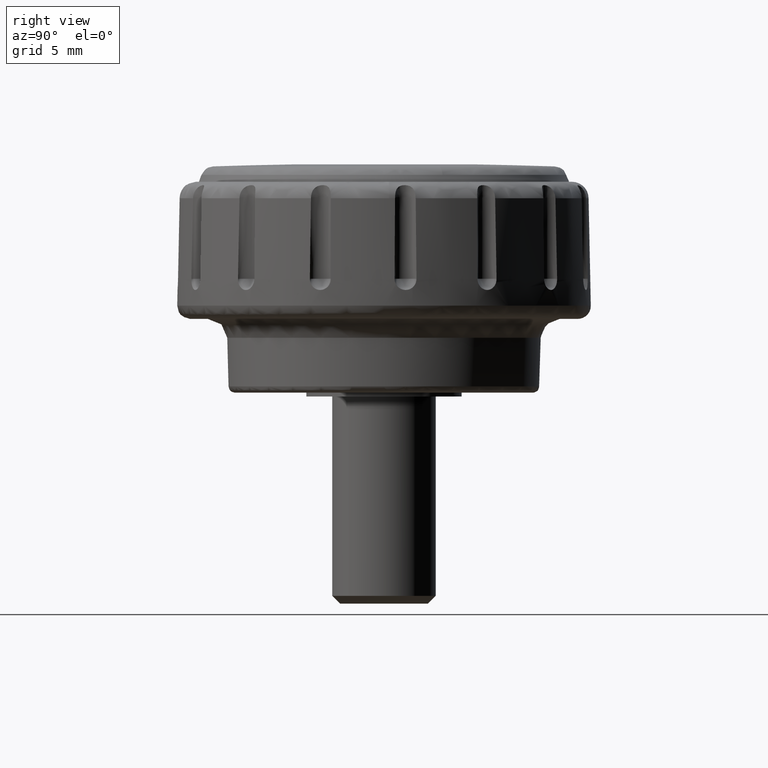
[diagram: clean part render]
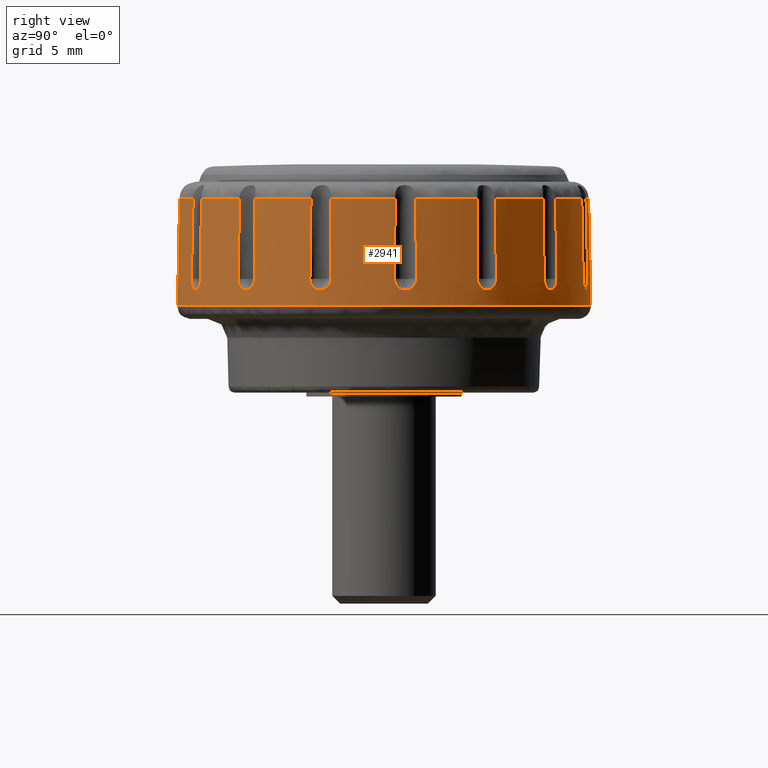
[diagram: same view with one face highlighted and labeled with its STEP entity id]
A machine part, right view. The second image highlights one B-rep face of the part: STEP entity #2941.
In plain terms, the highlighted face is a freeform B-spline surface patch.
Its self-contained STEP definition (entity closure, byte-faithful):
#1978=CARTESIAN_POINT('',(-14.927693594955068,5.198423367449368,15.533965141502227));
#1979=CARTESIAN_POINT('',(-10.298540728856555,18.491410626244370,15.533965141502231));
#1980=CARTESIAN_POINT('',(3.440039797647609,15.428083735924780,15.533965141502231));
#1981=CARTESIAN_POINT('',(18.868123533572390,11.988043938277174,15.533965141502238));
#1982=CARTESIAN_POINT('',(15.428083735924780,-3.440039797647609,15.533965141502231));
#1983=CARTESIAN_POINT('',(11.988043938277174,-18.868123533572390,15.533965141502238));
#1984=CARTESIAN_POINT('',(-3.440039797647609,-15.428083735924780,15.533965141502231));
#1985=CARTESIAN_POINT('',(-15.094565898296848,5.256535015813127,6.807405097432788));
#1986=CARTESIAN_POINT('',(-10.413665091609030,18.698120675831870,6.807405097432788));
#1987=CARTESIAN_POINT('',(3.478494992414926,15.600549753718290,6.807405097432788));
#1988=CARTESIAN_POINT('',(19.079044746133217,12.122054761303366,6.807405097432790));
#1989=CARTESIAN_POINT('',(15.600549753718290,-3.478494992414926,6.807405097432788));
#1990=CARTESIAN_POINT('',(12.122054761303366,-19.079044746133217,6.807405097432790));
#1991=CARTESIAN_POINT('',(-3.478494992414926,-15.600549753718290,6.807405097432788));
#1999=(BOUNDED_SURFACE()B_SPLINE_SURFACE(2,1,((#1978,#1985),(#1979,#1986),(#1980,#1987),(#1981,#1988),(#1982,#1989),(#1983,#1990),(#1984,#1991)),.UNSPECIFIED.,.F.,.F.,.U.)B_SPLINE_SURFACE_WITH_KNOTS((3,2,2,3),(2,2),(0.0,24.363972756865952,50.846551840415913,77.329130923965849),(0.0,8.728348843398013),.UNSPECIFIED.)GEOMETRIC_REPRESENTATION_ITEM()RATIONAL_B_SPLINE_SURFACE(((0.956886118190660,0.956886118190660),(0.730538238691624,0.730538238691624),(1.0,1.0),(0.707106781186548,0.707106781186548),(1.0,1.0),(0.707106781186548,0.707106781186548),(1.0,1.0)))REPRESENTATION_ITEM('')SURFACE());
#2000=CARTESIAN_POINT('',(-15.090495837670669,5.255117644719157,7.020248457151402));
#2001=VERTEX_POINT('',#2000);
#2002=CARTESIAN_POINT('',(0.311967356578948,15.976295025269760,7.020248025336921));
#2003=VERTEX_POINT('',#2002);
#2004=CARTESIAN_POINT('',(-15.090495837670669,5.255117644719157,7.020248457151402));
#2005=CARTESIAN_POINT('',(-14.772796356107129,6.167717485666166,7.020248448636456));
#2006=CARTESIAN_POINT('',(-14.111887728855841,7.624469030706870,7.020248430672686));
#2007=CARTESIAN_POINT('',(-13.001472589233650,9.336516996821787,7.020248400073816));
#2008=CARTESIAN_POINT('',(-11.856832311906929,10.764028787795320,7.020248368341139));
#2009=CARTESIAN_POINT('',(-10.668098928693651,11.945056868345590,7.020248335214681));
#2010=CARTESIAN_POINT('',(-9.209701806422318,13.093154495233120,7.020248294403361));
#2011=CARTESIAN_POINT('',(-7.639868188474646,14.086069439701451,7.020248250335789));
#2012=CARTESIAN_POINT('',(-6.000774453261035,14.845769060514160,7.020248204167408));
#2013=CARTESIAN_POINT('',(-4.191881620644669,15.452649387509810,7.020248153084097));
#2014=CARTESIAN_POINT('',(-2.197368646626697,15.889953810532150,7.020248096628525));
#2015=CARTESIAN_POINT('',(-0.575825835407164,15.993691656326620,7.020248050586776));
#2016=CARTESIAN_POINT('',(0.311967356578948,15.976295025269760,7.020248025336921));
#2017=B_SPLINE_CURVE_WITH_KNOTS('',3,(#2004,#2005,#2006,#2007,#2008,#2009,#2010,#2011,#2012,#2013,#2014,#2015,#2016),.UNSPECIFIED.,.F.,.U.,(4,1,1,1,1,1,1,1,1,1,4),(9.470718E-009,2.898937506332750,4.779330738673217,6.111276245479834,8.383419629077334,9.793721519733657,11.674101489221369,13.946244181845451,15.199839542260641,17.393632873564929,20.057520203524479),.UNSPECIFIED.);
#2018=EDGE_CURVE('',#2001,#2003,#2017,.T.);
#2019=ORIENTED_EDGE('',*,*,#2018,.F.);
#2020=CARTESIAN_POINT('',(-14.931664381964570,5.199806156370299,15.326313459857060));
#2021=VERTEX_POINT('',#2020);
#2022=CARTESIAN_POINT('',(-14.931664381964570,5.199806156370299,15.326313459857060));
#2023=CARTESIAN_POINT('',(-15.090495837670669,5.255117644719157,7.020248457151402));
#2024=QUASI_UNIFORM_CURVE('',1,(#2022,#2023),.UNSPECIFIED.,.F.,.U.);
#2025=EDGE_CURVE('',#2021,#2001,#2024,.T.);
#2026=ORIENTED_EDGE('',*,*,#2025,.F.);
#2027=CARTESIAN_POINT('',(-14.076055403437399,7.201197784416010,15.326313504426750));
#2028=VERTEX_POINT('',#2027);
#2029=CARTESIAN_POINT('',(-14.931664381964570,5.199806156370299,15.326313459857060));
#2030=CARTESIAN_POINT('',(-14.692891188378811,5.885536954796350,15.326313474619450));
#2031=CARTESIAN_POINT('',(-14.406776452359679,6.554775240638855,15.326313489523040));
#2032=CARTESIAN_POINT('',(-14.076055403437399,7.201197784416010,15.326313504426750));
#2033=B_SPLINE_CURVE_WITH_KNOTS('',3,(#2029,#2030,#2031,#2032),.UNSPECIFIED.,.F.,.U.,(4,4),(1.163967E-010,2.178335010239122),.UNSPECIFIED.);
#2034=EDGE_CURVE('',#2021,#2028,#2033,.T.);
#2035=ORIENTED_EDGE('',*,*,#2034,.T.);
#2036=CARTESIAN_POINT('',(-14.208974832873000,7.218052992821060,9.099991000000141));
#2037=VERTEX_POINT('',#2036);
#2038=CARTESIAN_POINT('',(-14.208974832873000,7.218052992821060,9.099991000000141));
#2039=CARTESIAN_POINT('',(-14.076055403437399,7.201197784416010,15.326313504426750));
#2040=QUASI_UNIFORM_CURVE('',1,(#2038,#2039),.UNSPECIFIED.,.F.,.U.);
#2041=EDGE_CURVE('',#2037,#2028,#2040,.T.);
#2042=ORIENTED_EDGE('',*,*,#2041,.F.);
#2043=CARTESIAN_POINT('',(-13.355504674081820,8.696306670591250,9.099991000000120));
#2044=VERTEX_POINT('',#2043);
#2045=CARTESIAN_POINT('',(-13.355504674081830,8.696306670591259,9.099991000000120));
#2046=CARTESIAN_POINT('',(-13.356295651383840,8.697200841092998,9.043159749671190));
#2047=CARTESIAN_POINT('',(-13.360107633359320,8.693432712874117,8.987076210219732));
#2048=CARTESIAN_POINT('',(-13.370133555254361,8.681072753468648,8.904462474515070));
#2049=CARTESIAN_POINT('',(-13.374198809378109,8.675826637296179,8.877153455126566));
#2050=CARTESIAN_POINT('',(-13.383798228536760,8.663028766872094,8.823002736645165));
#2051=CARTESIAN_POINT('',(-13.389366169842051,8.655428991191858,8.796043551609659));
#2052=CARTESIAN_POINT('',(-13.407951376072120,8.629568977792319,8.717514149114017));
#2053=CARTESIAN_POINT('',(-13.422881040632261,8.608220510851636,8.667842284737782));
#2054=CARTESIAN_POINT('',(-13.457645549288779,8.557318814833135,8.573800086129587));
#2055=CARTESIAN_POINT('',(-13.477698834929759,8.527426612144843,8.529150192411333));
#2056=CARTESIAN_POINT('',(-13.521043815156469,8.461590058999004,8.449013395721240));
#2057=CARTESIAN_POINT('',(-13.544459785879440,8.425473709347642,8.413047112514256));
#2058=CARTESIAN_POINT('',(-13.582147209052181,8.366326897673469,8.365384907340996));
#2059=CARTESIAN_POINT('',(-13.595180210019610,8.345710830080730,8.350529052961184));
#2060=CARTESIAN_POINT('',(-13.621523639128430,8.303691975167073,8.323607437447009));
#2061=CARTESIAN_POINT('',(-13.648274828306130,8.260683872951228,8.299291841923390));
#2062=CARTESIAN_POINT('',(-13.675799158432939,8.215713043644794,8.280100364119646));
#2063=CARTESIAN_POINT('',(-13.703702871040401,8.169741419211002,8.263502487488722));
#2064=CARTESIAN_POINT('',(-13.717903866110589,8.146155534592568,8.256477760920362));
#2065=CARTESIAN_POINT('',(-13.760674371406941,8.074515000557076,8.239615946243534));
#2066=CARTESIAN_POINT('',(-13.788971344599060,8.026323030278331,8.234071077902827));
#2067=CARTESIAN_POINT('',(-13.831079632508709,7.953394769859538,8.234034061611959));
#2068=CARTESIAN_POINT('',(-13.845059596971851,7.928978121006923,8.235411993848091));
#2069=CARTESIAN_POINT('',(-13.872905900595740,7.879925234119413,8.241029299347533));
#2070=CARTESIAN_POINT('',(-13.886714744744690,7.855387771995630,8.245274670844328));
#2071=CARTESIAN_POINT('',(-13.927069566729029,7.783069499322808,8.262008697703276));
#2072=CARTESIAN_POINT('',(-13.952842823501181,7.736059261788916,8.278505818858189));
#2073=CARTESIAN_POINT('',(-13.989868421571760,7.667386327443958,8.311281245802379));
#2074=CARTESIAN_POINT('',(-14.001998801593640,7.644685791931251,8.323635523174570));
#2075=CARTESIAN_POINT('',(-14.025268268880140,7.600763328037430,8.350627796961119));
#2076=CARTESIAN_POINT('',(-14.036434939134750,7.579492675904786,8.365270344347904));
#2077=CARTESIAN_POINT('',(-14.068591624466920,7.517713631435577,8.412550763818663));
#2078=CARTESIAN_POINT('',(-14.088255880407710,7.479206801677559,8.448520691629630));
#2079=CARTESIAN_POINT('',(-14.124026067308529,7.407900606166807,8.529621584036004));
#2080=CARTESIAN_POINT('',(-14.139550224221161,7.376265287452833,8.573424368690930));
#2081=CARTESIAN_POINT('',(-14.159561460463630,7.334632358738228,8.643795505250825));
#2082=CARTESIAN_POINT('',(-14.165681630999540,7.321731884156942,8.668036234749453));
#2083=CARTESIAN_POINT('',(-14.176814878006560,7.297936198939899,8.718119164301063));
#2084=CARTESIAN_POINT('',(-14.181829368028961,7.287035322123693,8.744019708183753));
#2085=CARTESIAN_POINT('',(-14.194900846258790,7.258074794974844,8.822455327845134));
#2086=CARTESIAN_POINT('',(-14.201137398161910,7.243444979324280,8.876242978843120));
#2087=CARTESIAN_POINT('',(-14.206871108992241,7.228485612756764,8.959151757000436));
#2088=CARTESIAN_POINT('',(-14.208176389572181,7.224661613694884,8.987280716264753));
#2089=CARTESIAN_POINT('',(-14.209516577766401,7.219500909861065,9.043760738803380));
#2090=CARTESIAN_POINT('',(-14.209552739321060,7.218170524690478,9.071916648190646));
#2091=CARTESIAN_POINT('',(-14.208974832873009,7.218052992821061,9.099991000000141));
#2092=B_SPLINE_CURVE_WITH_KNOTS('',3,(#2045,#2046,#2047,#2048,#2049,#2050,#2051,#2052,#2053,#2054,#2055,#2056,#2057,#2058,#2059,#2060,#2061,#2062,#2063,#2064,#2065,#2066,#2067,#2068,#2069,#2070,#2071,#2072,#2073,#2074,#2075,#2076,#2077,#2078,#2079,#2080,#2081,#2082,#2083,#2084,#2085,#2086,#2087,#2088,#2089,#2090,#2091),.UNSPECIFIED.,.F.,.U.,(4,2,2,2,2,2,2,2,1,2,2,2,2,2,2,2,2,2,2,2,2,2,2,4),(0.0,0.062499999999999,0.093749999999999,0.124999999999999,0.187499999999999,0.249999999999998,0.312499999999998,0.343749999999998,0.374999999999999,0.406249999999999,0.437499999999999,0.499999999999999,0.531250000000000,0.562500000000000,0.625000000000002,0.656250000000003,0.687500000000004,0.750000000000004,0.812500000000004,0.843750000000004,0.875000000000004,0.937500000000003,0.968750000000002,1.0),.UNSPECIFIED.);
#2093=EDGE_CURVE('',#2044,#2037,#2092,.T.);
#2094=ORIENTED_EDGE('',*,*,#2093,.F.);
#2095=CARTESIAN_POINT('',(-13.274447920699160,8.589622672246000,15.326313504426750));
#2096=VERTEX_POINT('',#2095);
#2097=CARTESIAN_POINT('',(-13.274447920699160,8.589622672246000,15.326313504426750));
#2098=CARTESIAN_POINT('',(-13.355504674081820,8.696306670591250,9.099991000000120));
#2099=QUASI_UNIFORM_CURVE('',1,(#2097,#2098),.UNSPECIFIED.,.F.,.U.);
#2100=EDGE_CURVE('',#2096,#2044,#2099,.T.);
#2101=ORIENTED_EDGE('',*,*,#2100,.F.);
#2102=CARTESIAN_POINT('',(-9.930125462377559,12.303869048082300,15.326313504426750));
#2103=VERTEX_POINT('',#2102);
#2104=CARTESIAN_POINT('',(-13.274447920699160,8.589622672246000,15.326313504426750));
#2105=CARTESIAN_POINT('',(-12.891025061125450,9.182199729223362,15.326313504426750));
#2106=CARTESIAN_POINT('',(-11.887930098806320,10.525844374306780,15.326313504426770));
#2107=CARTESIAN_POINT('',(-10.682859058365329,11.696488970569151,15.326313504426720));
#2108=CARTESIAN_POINT('',(-9.930125462377559,12.303869048082300,15.326313504426750));
#2109=B_SPLINE_CURVE_WITH_KNOTS('',3,(#2104,#2105,#2106,#2107,#2108),.UNSPECIFIED.,.F.,.U.,(4,1,4),(5.996288E-010,2.117418032911687,5.019063199674124),.UNSPECIFIED.);
#2110=EDGE_CURVE('',#2096,#2103,#2109,.T.);
#2111=ORIENTED_EDGE('',*,*,#2110,.T.);
#2112=CARTESIAN_POINT('',(-10.044697772485900,12.373330249686539,9.099991000000141));
#2113=VERTEX_POINT('',#2112);
#2114=CARTESIAN_POINT('',(-10.044697772485900,12.373330249686539,9.099991000000141));
#2115=CARTESIAN_POINT('',(-9.930125462377559,12.303869048082300,15.326313504426750));
#2116=QUASI_UNIFORM_CURVE('',1,(#2114,#2115),.UNSPECIFIED.,.F.,.U.);
#2117=EDGE_CURVE('',#2113,#2103,#2116,.T.);
#2118=ORIENTED_EDGE('',*,*,#2117,.F.);
#2119=CARTESIAN_POINT('',(-8.663754047178010,13.376644594904880,9.099991000000120));
#2120=VERTEX_POINT('',#2119);
#2121=CARTESIAN_POINT('',(-8.663754047178006,13.376644594904890,9.099991000000120));
#2122=CARTESIAN_POINT('',(-8.664112948991145,13.377783179757690,9.043159749671188));
#2123=CARTESIAN_POINT('',(-8.669128003631885,13.375891296091680,8.987076210219732));
#2124=CARTESIAN_POINT('',(-8.683314387434917,13.368677821135501,8.904462474515073));
#2125=CARTESIAN_POINT('',(-8.689161969555007,13.365538743351420,8.877153455126566));
#2126=CARTESIAN_POINT('',(-8.703136838178210,13.357751742482060,8.823002736645167));
#2127=CARTESIAN_POINT('',(-8.711314512914381,13.353073687685640,8.796043551609664));
#2128=CARTESIAN_POINT('',(-8.738811158685241,13.337008674302799,8.717514149114017));
#2129=CARTESIAN_POINT('',(-8.761133289706553,13.323578320946950,8.667842284737782));
#2130=CARTESIAN_POINT('',(-8.813595833642321,13.291217307312071,8.573800086129589));
#2131=CARTESIAN_POINT('',(-8.844073675826026,13.272065827411501,8.529150192411331));
#2132=CARTESIAN_POINT('',(-8.910449424241959,13.229551135089871,8.449013395721238));
#2133=CARTESIAN_POINT('',(-8.946530820749574,13.206081341245460,8.413047112514251));
#2134=CARTESIAN_POINT('',(-9.005017170628278,13.167376896093939,8.365384907340998));
#2135=CARTESIAN_POINT('',(-9.025308719587622,13.153844180252840,8.350529052961178));
#2136=CARTESIAN_POINT('',(-9.066465247582173,13.126172884133940,8.323607437447006));
#2137=CARTESIAN_POINT('',(-9.108396646062337,13.097763716597260,8.299291841923388));
#2138=CARTESIAN_POINT('',(-9.151832656972776,13.067875973396630,8.280100364119649));
#2139=CARTESIAN_POINT('',(-9.196022311075636,13.037228267110009,8.263502487488726));
#2140=CARTESIAN_POINT('',(-9.218588809149679,13.021457554415530,8.256477760920360));
#2141=CARTESIAN_POINT('',(-9.286800440305990,12.973407001711211,8.239615946243532));
#2142=CARTESIAN_POINT('',(-9.332252451845072,12.940890862053591,8.234071077902826));
#2143=CARTESIAN_POINT('',(-9.400382882822139,12.891394564684260,8.234034061611956));
#2144=CARTESIAN_POINT('',(-9.423085361644926,12.874775009850159,8.235411993848086));
#2145=CARTESIAN_POINT('',(-9.468475832378468,12.841289079907870,8.241029299347527));
#2146=CARTESIAN_POINT('',(-9.491071124199864,12.824489555756511,8.245274670844326));
#2147=CARTESIAN_POINT('',(-9.557351579977610,12.774837311077521,8.262008697703273));
#2148=CARTESIAN_POINT('',(-9.600017407835193,12.742374250056370,8.278505818858186));
#2149=CARTESIAN_POINT('',(-9.661773773554709,12.694698070289640,8.311281245802375));
#2150=CARTESIAN_POINT('',(-9.682088566733640,12.678893969235290,8.323635523174563));
#2151=CARTESIAN_POINT('',(-9.721211158394775,12.648233346866890,8.350627796961113));
#2152=CARTESIAN_POINT('',(-9.740063972927324,12.633343533203711,8.365270344347898));
#2153=CARTESIAN_POINT('',(-9.794568367905216,12.589984869995821,8.412550763818654));
#2154=CARTESIAN_POINT('',(-9.828194698269115,12.562805304032111,8.448520691629629));
#2155=CARTESIAN_POINT('',(-9.889875232623933,12.512212898763710,8.529621584036002));
#2156=CARTESIAN_POINT('',(-9.916924498991550,12.489626840520710,8.573424368690922));
#2157=CARTESIAN_POINT('',(-9.952139310629470,12.459732570658190,8.643795505250820));
#2158=CARTESIAN_POINT('',(-9.962977460347817,12.450436698321839,8.668036234749447));
#2159=CARTESIAN_POINT('',(-9.982826764704752,12.433226557694480,8.718119164301058));
#2160=CARTESIAN_POINT('',(-9.991841515329929,12.425307688033170,8.744019708183751));
#2161=CARTESIAN_POINT('',(-10.015562212485690,12.404167579180649,8.822455327845132));
#2162=CARTESIAN_POINT('',(-10.027210068254680,12.393339211732370,8.876242978843116));
#2163=CARTESIAN_POINT('',(-10.038532596279371,12.382005260650899,8.959151757000434));
#2164=CARTESIAN_POINT('',(-10.041280389965671,12.379042769119240,8.987280716264753));
#2165=CARTESIAN_POINT('',(-10.044603760156170,12.374873335220830,9.043760738803378));
#2166=CARTESIAN_POINT('',(-10.045177911778451,12.373672676120670,9.071916648190646));
#2167=CARTESIAN_POINT('',(-10.044697772485909,12.373330249686550,9.099991000000141));
#2168=B_SPLINE_CURVE_WITH_KNOTS('',3,(#2121,#2122,#2123,#2124,#2125,#2126,#2127,#2128,#2129,#2130,#2131,#2132,#2133,#2134,#2135,#2136,#2137,#2138,#2139,#2140,#2141,#2142,#2143,#2144,#2145,#2146,#2147,#2148,#2149,#2150,#2151,#2152,#2153,#2154,#2155,#2156,#2157,#2158,#2159,#2160,#2161,#2162,#2163,#2164,#2165,#2166,#2167),.UNSPECIFIED.,.F.,.U.,(4,2,2,2,2,2,2,2,1,2,2,2,2,2,2,2,2,2,2,2,2,2,2,4),(0.0,0.062500000000000,0.093750000000000,0.125000000000001,0.187500000000001,0.250000000000001,0.312500000000001,0.343750000000001,0.375000000000002,0.406250000000002,0.437500000000002,0.500000000000003,0.531250000000002,0.562500000000002,0.625000000000003,0.656250000000003,0.687500000000004,0.750000000000004,0.812500000000004,0.843750000000004,0.875000000000004,0.937500000000003,0.968750000000002,1.0),.UNSPECIFIED.);
#2169=EDGE_CURVE('',#2120,#2113,#2168,.T.);
#2170=ORIENTED_EDGE('',*,*,#2169,.F.);
#2171=CARTESIAN_POINT('',(-8.633097309670880,13.246215161043940,15.326313504426750));
#2172=VERTEX_POINT('',#2171);
#2173=CARTESIAN_POINT('',(-8.633097309670880,13.246215161043940,15.326313504426750));
#2174=CARTESIAN_POINT('',(-8.663754047178010,13.376644594904880,9.099991000000120));
#2175=QUASI_UNIFORM_CURVE('',1,(#2173,#2174),.UNSPECIFIED.,.F.,.U.);
#2176=EDGE_CURVE('',#2172,#2120,#2175,.T.);
#2177=ORIENTED_EDGE('',*,*,#2176,.F.);
#2178=CARTESIAN_POINT('',(-4.067186616514904,15.279089576193950,15.326313504426750));
#2179=VERTEX_POINT('',#2178);
#2180=CARTESIAN_POINT('',(-8.633097309670880,13.246215161043940,15.326313504426750));
#2181=CARTESIAN_POINT('',(-7.954211799950596,13.688728144313499,15.326313504426780));
#2182=CARTESIAN_POINT('',(-6.482196886401813,14.494169882160779,15.326313504426720));
#2183=CARTESIAN_POINT('',(-4.900826160168887,15.057244897867671,15.326313504426761));
#2184=CARTESIAN_POINT('',(-4.067186616514904,15.279089576193950,15.326313504426750));
#2185=B_SPLINE_CURVE_WITH_KNOTS('',3,(#2180,#2181,#2182,#2183,#2184),.UNSPECIFIED.,.F.,.U.,(4,1,4),(5.986980E-010,2.431110788473681,5.019063199674158),.UNSPECIFIED.);
#2186=EDGE_CURVE('',#2172,#2179,#2185,.T.);
#2187=ORIENTED_EDGE('',*,*,#2186,.T.);
#2188=CARTESIAN_POINT('',(-4.143601214021481,15.389146298204800,9.099991000000141));
#2189=VERTEX_POINT('',#2188);
#2190=CARTESIAN_POINT('',(-4.143601214021481,15.389146298204800,9.099991000000141));
#2191=CARTESIAN_POINT('',(-4.067186616514904,15.279089576193950,15.326313504426750));
#2192=QUASI_UNIFORM_CURVE('',1,(#2190,#2191),.UNSPECIFIED.,.F.,.U.);
#2193=EDGE_CURVE('',#2189,#2179,#2192,.T.);
#2194=ORIENTED_EDGE('',*,*,#2193,.F.);
#2195=CARTESIAN_POINT('',(-2.473961637782505,15.744039145758350,9.099991000000120));
#2196=VERTEX_POINT('',#2195);
#2197=CARTESIAN_POINT('',(-2.473961637782499,15.744039145758370,9.099991000000118));
#2198=CARTESIAN_POINT('',(-2.473826553541750,15.745223985530711,9.043221450787721));
#2199=CARTESIAN_POINT('',(-2.479147405151505,15.745536819044769,8.987303200528301));
#2200=CARTESIAN_POINT('',(-2.495026799480015,15.744720075227839,8.904658279598683));
#2201=CARTESIAN_POINT('',(-2.501645848213721,15.744231463307729,8.877316876139364));
#2202=CARTESIAN_POINT('',(-2.517603773177249,15.742800190839670,8.823058528531327));
#2203=CARTESIAN_POINT('',(-2.526969045667508,15.741853477697580,8.796126329426389));
#2204=CARTESIAN_POINT('',(-2.558547575782589,15.738370406215470,8.717746396970091));
#2205=CARTESIAN_POINT('',(-2.584367418825212,15.735186319009189,8.668080535234328));
#2206=CARTESIAN_POINT('',(-2.630221020552293,15.729013881350170,8.597455232973381));
#2207=CARTESIAN_POINT('',(-2.646781533920092,15.726710227782840,8.574465155763315));
#2208=CARTESIAN_POINT('',(-2.682015224982648,15.721646854598390,8.530309743216563));
#2209=CARTESIAN_POINT('',(-2.700565565553291,15.718905401656130,8.509276224740265));
#2210=CARTESIAN_POINT('',(-2.758933720825497,15.710037519594939,8.449220577401736));
#2211=CARTESIAN_POINT('',(-2.801442368079804,15.703274168122540,8.413213819915599));
#2212=CARTESIAN_POINT('',(-2.870749557967979,15.691682910309790,8.365439260090421));
#2213=CARTESIAN_POINT('',(-2.894733857488978,15.687583325391140,8.350617549769147));
#2214=CARTESIAN_POINT('',(-2.943494499753230,15.679061356150910,8.323730424298132));
#2215=CARTESIAN_POINT('',(-2.993298903351211,15.670174919130680,8.299418715807665));
#2216=CARTESIAN_POINT('',(-3.045159169939687,15.660535433065251,8.280194599588358));
#2217=CARTESIAN_POINT('',(-3.098062392439989,15.650499123985391,8.263557718517717));
#2218=CARTESIAN_POINT('',(-3.125193673483538,15.645251026672630,8.256504831400912));
#2219=CARTESIAN_POINT('',(-3.206851009105847,15.629139784274120,8.239666500062759));
#2220=CARTESIAN_POINT('',(-3.261552579200168,15.617933855196689,8.234092214145898));
#2221=CARTESIAN_POINT('',(-3.371463989201582,15.594578309440619,8.234000981755074));
#2222=CARTESIAN_POINT('',(-3.427201862059761,15.582302422172241,8.239672076130397));
#2223=CARTESIAN_POINT('',(-3.534719776211892,15.557803414757130,8.261913415507033));
#2224=CARTESIAN_POINT('',(-3.586919002666240,15.545499041975161,8.278377858240999));
#2225=CARTESIAN_POINT('',(-3.662867805649777,15.527031159445320,8.311183499406006));
#2226=CARTESIAN_POINT('',(-3.687864771351777,15.520853884857599,8.323538300276415));
#2227=CARTESIAN_POINT('',(-3.735989336178678,15.508779523158010,8.350461153861591));
#2228=CARTESIAN_POINT('',(-3.782505833466360,15.496923080626420,8.379689426234002));
#2229=CARTESIAN_POINT('',(-3.825882019550177,15.485530575379640,8.413433611230548));
#2230=CARTESIAN_POINT('',(-3.867679941256040,15.474392195908900,8.449454939955976));
#2231=CARTESIAN_POINT('',(-3.887869529670428,15.468928086331269,8.468689590299334));
#2232=CARTESIAN_POINT('',(-3.945431277347112,15.453117763576779,8.529342653981132));
#2233=CARTESIAN_POINT('',(-3.979323965951535,15.443489777261970,8.573078597980237));
#2234=CARTESIAN_POINT('',(-4.023707179329538,15.430489584612269,8.643462384331324));
#2235=CARTESIAN_POINT('',(-4.037417600934852,15.426397963569791,8.667726162053691));
#2236=CARTESIAN_POINT('',(-4.062618491376282,15.418729698327120,8.717901204948548));
#2237=CARTESIAN_POINT('',(-4.074049638597626,15.415170251035590,8.743730950407969));
#2238=CARTESIAN_POINT('',(-4.104300116198838,15.405513887119589,8.822024204165313));
#2239=CARTESIAN_POINT('',(-4.119381018249499,15.400350320674599,8.875792900562319));
#2240=CARTESIAN_POINT('',(-4.134390770142552,15.394584322149200,8.958807354616090));
#2241=CARTESIAN_POINT('',(-4.138123477140002,15.392989444362470,8.987004727899096));
#2242=CARTESIAN_POINT('',(-4.142871815204978,15.390528268651570,9.043462564548101));
#2243=CARTESIAN_POINT('',(-4.143902715088483,15.389658058859689,9.071715071542380));
#2244=CARTESIAN_POINT('',(-4.143601214021481,15.389146298204800,9.099991000000141));
#2245=B_SPLINE_CURVE_WITH_KNOTS('',3,(#2197,#2198,#2199,#2200,#2201,#2202,#2203,#2204,#2205,#2206,#2207,#2208,#2209,#2210,#2211,#2212,#2213,#2214,#2215,#2216,#2217,#2218,#2219,#2220,#2221,#2222,#2223,#2224,#2225,#2226,#2227,#2228,#2229,#2230,#2231,#2232,#2233,#2234,#2235,#2236,#2237,#2238,#2239,#2240,#2241,#2242,#2243,#2244),.UNSPECIFIED.,.F.,.U.,(4,2,2,2,2,2,2,2,2,1,2,2,2,2,2,2,1,2,2,2,2,2,2,2,4),(0.0,0.062499999999998,0.093749999999998,0.124999999999997,0.187499999999997,0.218749999999997,0.249999999999997,0.312499999999997,0.343749999999997,0.374999999999997,0.406249999999998,0.437499999999998,0.499999999999999,0.562500000000000,0.625000000000001,0.656250000000001,0.687500000000001,0.718750000000001,0.750000000000001,0.812500000000001,0.843750000000002,0.875000000000002,0.937500000000001,0.968750000000000,1.0),.UNSPECIFIED.);
#2246=EDGE_CURVE('',#2196,#2189,#2245,.T.);
#2247=ORIENTED_EDGE('',*,*,#2246,.F.);
#2248=CARTESIAN_POINT('',(-2.499005744573605,15.612416710410500,15.326313504426750));
#2249=VERTEX_POINT('',#2248);
#2250=CARTESIAN_POINT('',(-2.499005744573605,15.612416710410500,15.326313504426750));
#2251=CARTESIAN_POINT('',(-2.473961637782505,15.744039145758350,9.099991000000120));
#2252=QUASI_UNIFORM_CURVE('',1,(#2250,#2251),.UNSPECIFIED.,.F.,.U.);
#2253=EDGE_CURVE('',#2249,#2196,#2252,.T.);
#2254=ORIENTED_EDGE('',*,*,#2253,.F.);
#2255=CARTESIAN_POINT('',(-0.397335804670132,15.806160492326489,15.326313504522590));
#2256=VERTEX_POINT('',#2255);
#2257=CARTESIAN_POINT('',(-2.499005744573605,15.612416710410500,15.326313504426750));
#2258=CARTESIAN_POINT('',(-1.803806124702425,15.723706525486390,15.326313504426780));
#2259=CARTESIAN_POINT('',(-1.101165650303555,15.788489175578709,15.326313504458710));
#2260=CARTESIAN_POINT('',(-0.397335804670132,15.806160492326489,15.326313504522590));
#2261=B_SPLINE_CURVE_WITH_KNOTS('',3,(#2257,#2258,#2259,#2260),.UNSPECIFIED.,.F.,.U.,(4,4),(9.971712E-011,2.112152923548735),.UNSPECIFIED.);
#2262=EDGE_CURVE('',#2249,#2256,#2261,.T.);
#2263=ORIENTED_EDGE('',*,*,#2262,.T.);
#2264=CARTESIAN_POINT('',(2.499005744573610,15.612416710410500,15.326313504426750));
#2265=VERTEX_POINT('',#2264);
#2266=CARTESIAN_POINT('',(-0.397335804670132,15.806160492326489,15.326313504522590));
#2267=CARTESIAN_POINT('',(0.571331433905526,15.830588017631881,15.326313504458810));
#2268=CARTESIAN_POINT('',(1.542220175080368,15.765611772042149,15.326313504426730));
#2269=CARTESIAN_POINT('',(2.499005744573610,15.612416710410500,15.326313504426750));
#2270=B_SPLINE_CURVE_WITH_KNOTS('',3,(#2266,#2267,#2268,#2269),.UNSPECIFIED.,.F.,.U.,(4,4),(1.989862E-010,2.906910663111499),.UNSPECIFIED.);
#2271=EDGE_CURVE('',#2256,#2265,#2270,.T.);
#2272=ORIENTED_EDGE('',*,*,#2271,.T.);
#2273=CARTESIAN_POINT('',(2.473961637782510,15.744039145758350,9.099991000000141));
#2274=VERTEX_POINT('',#2273);
#2275=CARTESIAN_POINT('',(2.473961637782510,15.744039145758350,9.099991000000141));
#2276=CARTESIAN_POINT('',(2.499005744573610,15.612416710410500,15.326313504426750));
#2277=QUASI_UNIFORM_CURVE('',1,(#2275,#2276),.UNSPECIFIED.,.F.,.U.);
#2278=EDGE_CURVE('',#2274,#2265,#2277,.T.);
#2279=ORIENTED_EDGE('',*,*,#2278,.F.);
#2280=CARTESIAN_POINT('',(4.143601214021485,15.389146298204800,9.099991000000120));
#2281=VERTEX_POINT('',#2280);
#2282=CARTESIAN_POINT('',(4.143601214021483,15.389146298204830,9.099991000000122));
#2283=CARTESIAN_POINT('',(4.144201266084988,15.390164812138000,9.043715811925129));
#2284=CARTESIAN_POINT('',(4.139558414419762,15.392588983965990,8.987865636841693));
#2285=CARTESIAN_POINT('',(4.124655302030480,15.398329118908160,8.904732952019742));
#2286=CARTESIAN_POINT('',(4.118307216403230,15.400610875768001,8.876986588192919));
#2287=CARTESIAN_POINT('',(4.103131858681066,15.405797381309450,8.822752981568817));
#2288=CARTESIAN_POINT('',(4.094308281526969,15.408702585817410,8.796198490469577));
#2289=CARTESIAN_POINT('',(4.064205832166508,15.418314172235320,8.718184651212971));
#2290=CARTESIAN_POINT('',(4.039331666623883,15.425909487066081,8.668358649009218));
#2291=CARTESIAN_POINT('',(3.979512897768851,15.443437939709870,8.573261571471944));
#2292=CARTESIAN_POINT('',(3.945459239472154,15.453107333366580,8.529441191064286));
#2293=CARTESIAN_POINT('',(3.888594836469289,15.468730216691929,8.469419981461179));
#2294=CARTESIAN_POINT('',(3.868656680006994,15.474129382259189,8.450352093995848));
#2295=CARTESIAN_POINT('',(3.826761702898716,15.485298576914371,8.414138716753774));
#2296=CARTESIAN_POINT('',(3.804699682997503,15.491095111426789,8.396933752149730));
#2297=CARTESIAN_POINT('',(3.736827925874064,15.508651532071591,8.349334124405399));
#2298=CARTESIAN_POINT('',(3.689015430936443,15.520667404357880,8.322566702498934));
#2299=CARTESIAN_POINT('',(3.588271502793955,15.545175683509759,8.278875079090124));
#2300=CARTESIAN_POINT('',(3.534907182361924,15.557759510421519,8.261968894266957));
#2301=CARTESIAN_POINT('',(3.427484816598232,15.582239144976979,8.239713969997418));
#2302=CARTESIAN_POINT('',(3.372946363646120,15.594257889582421,8.234072034297467));
#2303=CARTESIAN_POINT('',(3.289862465446253,15.611920801929919,8.234033590807899));
#2304=CARTESIAN_POINT('',(3.261966241374561,15.617743385245429,8.235456334507086));
#2305=CARTESIAN_POINT('',(3.207002367184134,15.629006321292120,8.241073590978969));
#2306=CARTESIAN_POINT('',(3.152547197518044,15.639955740419060,8.249453177949070));
#2307=CARTESIAN_POINT('',(3.099095948188970,15.650300449237729,8.263270789703398));
#2308=CARTESIAN_POINT('',(3.046155545023650,15.660348910395300,8.279844594251651));
#2309=CARTESIAN_POINT('',(3.019796455369080,15.665251013702409,8.289575733528865));
#2310=CARTESIAN_POINT('',(2.942753339091367,15.679292554169470,8.322531880744441));
#2311=CARTESIAN_POINT('',(2.894163782024152,15.687763788299749,8.349361850883964));
#2312=CARTESIAN_POINT('',(2.802409138340788,15.703115654348570,8.412485881583811));
#2313=CARTESIAN_POINT('',(2.758911218769912,15.710041484478261,8.449229894665132));
#2314=CARTESIAN_POINT('',(2.680925356216141,15.721888793838300,8.529498127706976));
#2315=CARTESIAN_POINT('',(2.646038488838914,15.726882242831961,8.573174343560561));
#2316=CARTESIAN_POINT('',(2.599942670196486,15.733090893972131,8.644050870599358));
#2317=CARTESIAN_POINT('',(2.585586237363289,15.734949105591401,8.668676276643943));
#2318=CARTESIAN_POINT('',(2.559589346259898,15.738172399731191,8.718713462911500));
#2319=CARTESIAN_POINT('',(2.547868937867035,15.739548751302101,8.744229912059335));
#2320=CARTESIAN_POINT('',(2.516464846159223,15.743011060648010,8.822241812302352));
#2321=CARTESIAN_POINT('',(2.500468751558473,15.744439681966901,8.876358947249406));
#2322=CARTESIAN_POINT('',(2.479024457748281,15.745543633005950,8.987919596027144));
#2323=CARTESIAN_POINT('',(2.473828101838870,15.745210405234600,9.043872127196996));
#2324=CARTESIAN_POINT('',(2.473961637782514,15.744039145758370,9.099991000000141));
#2325=B_SPLINE_CURVE_WITH_KNOTS('',3,(#2282,#2283,#2284,#2285,#2286,#2287,#2288,#2289,#2290,#2291,#2292,#2293,#2294,#2295,#2296,#2297,#2298,#2299,#2300,#2301,#2302,#2303,#2304,#2305,#2306,#2307,#2308,#2309,#2310,#2311,#2312,#2313,#2314,#2315,#2316,#2317,#2318,#2319,#2320,#2321,#2322,#2323,#2324),.UNSPECIFIED.,.F.,.U.,(4,2,2,2,2,2,2,2,2,2,2,2,1,2,2,2,2,2,2,2,2,4),(0.0,0.062499999999999,0.093750000000000,0.125000000000000,0.187500000000001,0.250000000000002,0.281250000000002,0.312500000000002,0.375000000000002,0.437500000000001,0.500000000000000,0.531250000000000,0.562500000000000,0.593749999999999,0.624999999999999,0.687499999999998,0.749999999999998,0.812499999999998,0.843749999999998,0.874999999999998,0.937499999999999,1.0),.UNSPECIFIED.);
#2326=EDGE_CURVE('',#2281,#2274,#2325,.T.);
#2327=ORIENTED_EDGE('',*,*,#2326,.F.);
#2328=CARTESIAN_POINT('',(4.067186616514915,15.279089576193950,15.326313504426750));
#2329=VERTEX_POINT('',#2328);
#2330=CARTESIAN_POINT('',(4.067186616514915,15.279089576193950,15.326313504426750));
#2331=CARTESIAN_POINT('',(4.143601214021485,15.389146298204800,9.099991000000120));
#2332=QUASI_UNIFORM_CURVE('',1,(#2330,#2331),.UNSPECIFIED.,.F.,.U.);
#2333=EDGE_CURVE('',#2329,#2281,#2332,.T.);
#2334=ORIENTED_EDGE('',*,*,#2333,.F.);
#2335=CARTESIAN_POINT('',(8.633097309670880,13.246215161043940,15.326313504426750));
#2336=VERTEX_POINT('',#2335);
#2337=CARTESIAN_POINT('',(4.067186616514915,15.279089576193950,15.326313504426750));
#2338=CARTESIAN_POINT('',(4.951358491793971,15.043820995560891,15.326313504426770));
#2339=CARTESIAN_POINT('',(6.530553911091316,14.472624730229910,15.326313504426750));
#2340=CARTESIAN_POINT('',(7.998006512485001,13.660170342943760,15.326313504426761));
#2341=CARTESIAN_POINT('',(8.633097309670880,13.246215161043940,15.326313504426750));
#2342=B_SPLINE_CURVE_WITH_KNOTS('',3,(#2337,#2338,#2339,#2340,#2341),.UNSPECIFIED.,.F.,.U.,(4,1,4),(5.997398E-010,2.744797888838862,5.019063199674147),.UNSPECIFIED.);
#2343=EDGE_CURVE('',#2329,#2336,#2342,.T.);
#2344=ORIENTED_EDGE('',*,*,#2343,.T.);
#2345=CARTESIAN_POINT('',(8.663754047178010,13.376644594904880,9.099991000000141));
#2346=VERTEX_POINT('',#2345);
#2347=CARTESIAN_POINT('',(8.663754047178010,13.376644594904880,9.099991000000141));
#2348=CARTESIAN_POINT('',(8.633097309670880,13.246215161043940,15.326313504426750));
#2349=QUASI_UNIFORM_CURVE('',1,(#2347,#2348),.UNSPECIFIED.,.F.,.U.);
#2350=EDGE_CURVE('',#2346,#2336,#2349,.T.);
#2351=ORIENTED_EDGE('',*,*,#2350,.F.);
#2352=CARTESIAN_POINT('',(10.044697772485900,12.373330249686539,9.099991000000120));
#2353=VERTEX_POINT('',#2352);
#2354=CARTESIAN_POINT('',(10.044697772485920,12.373330249686539,9.099991000000122));
#2355=CARTESIAN_POINT('',(10.045669724269951,12.374023427663690,9.043159749671190));
#2356=CARTESIAN_POINT('',(10.042320698869609,12.378208403855171,8.987076210219735));
#2357=CARTESIAN_POINT('',(10.031076442823540,12.389471370263740,8.904462474515070));
#2358=CARTESIAN_POINT('',(10.026284000190721,12.394062722961680,8.877153455126564));
#2359=CARTESIAN_POINT('',(10.014559650372810,12.404947297226300,8.823002736645165));
#2360=CARTESIAN_POINT('',(10.007583515407131,12.411279129639571,8.796043551609657));
#2361=CARTESIAN_POINT('',(9.983807848913509,12.432465631626050,8.717514149114017));
#2362=CARTESIAN_POINT('',(9.964136906002029,12.449545032364041,8.667842284737782));
#2363=CARTESIAN_POINT('',(9.917147935466367,12.489439773467200,8.573800086129587));
#2364=CARTESIAN_POINT('',(9.889515624523591,12.512507791121919,8.529150192411327));
#2365=CARTESIAN_POINT('',(9.828570515077946,12.562497116738861,8.449013395721240));
#2366=CARTESIAN_POINT('',(9.795099650004486,12.589559998852060,8.413047112514256));
#2367=CARTESIAN_POINT('',(9.740216259182057,12.633223491708840,8.365384907340998));
#2368=CARTESIAN_POINT('',(9.721075448127575,12.648340062397400,8.350529052961175));
#2369=CARTESIAN_POINT('',(9.682040415059586,12.678931345777579,8.323607437447006));
#2370=CARTESIAN_POINT('',(9.642064182514604,12.710031585824760,8.299291868929428));
#2371=CARTESIAN_POINT('',(9.600216777955531,12.742105840620351,8.280100364119647));
#2372=CARTESIAN_POINT('',(9.557413723088798,12.774662037026530,8.263502487488722));
#2373=CARTESIAN_POINT('',(9.535441452605697,12.791250633833821,8.256477760920362));
#2374=CARTESIAN_POINT('',(9.468664108103329,12.841275312757400,8.239615946243530));
#2375=CARTESIAN_POINT('',(9.423693977603076,12.874454704764700,8.234071077902824));
#2376=CARTESIAN_POINT('',(9.355566740451497,12.923955398057680,8.234034061611959));
#2377=CARTESIAN_POINT('',(9.332745152757918,12.940411013595449,8.235411993848087));
#2378=CARTESIAN_POINT('',(9.286871714042757,12.973232195139680,8.241029299347531));
#2379=CARTESIAN_POINT('',(9.263912087962277,12.989530256203830,8.245274670844328));
#2380=CARTESIAN_POINT('',(9.196208209881407,13.037223328159600,8.262008697703276));
#2381=CARTESIAN_POINT('',(9.152149538271283,13.067769304221709,8.278505818858188));
#2382=CARTESIAN_POINT('',(9.087723030313914,13.111770348487170,8.311281245802373));
#2383=CARTESIAN_POINT('',(9.066414820692483,13.126207129110570,8.323635523174565));
#2384=CARTESIAN_POINT('',(9.025165290308069,13.153940271474299,8.350627796961112));
#2385=CARTESIAN_POINT('',(9.005178395914925,13.167269158120980,8.365270344347900));
#2386=CARTESIAN_POINT('',(8.947099072416922,13.205707354346810,8.412550763818658));
#2387=CARTESIAN_POINT('',(8.910858661556143,13.229288947175970,8.448520691629627));
#2388=CARTESIAN_POINT('',(8.843682091512831,13.272316708288450,8.529621584036002));
#2389=CARTESIAN_POINT('',(8.813842790650433,13.291062613495340,8.573424368690922));
#2390=CARTESIAN_POINT('',(8.774529675247965,13.315316052151740,8.643795505250818));
#2391=CARTESIAN_POINT('',(8.762339602837285,13.322751162536481,8.668036234749444));
#2392=CARTESIAN_POINT('',(8.739838014074470,13.336310746859640,8.718119164301060));
#2393=CARTESIAN_POINT('',(8.729521010338150,13.342437218882900,8.744019708183753));
#2394=CARTESIAN_POINT('',(8.702085473519215,13.358464289585591,8.822455327845134));
#2395=CARTESIAN_POINT('',(8.688187698716050,13.366195909152690,8.876242978843118));
#2396=CARTESIAN_POINT('',(8.673909617105734,13.373461889713930,8.959151757000436));
#2397=CARTESIAN_POINT('',(8.670243005283975,13.375159736575750,8.987280716264753));
#2398=CARTESIAN_POINT('',(8.665250660138161,13.377032023519940,9.043760738803377));
#2399=CARTESIAN_POINT('',(8.663931342868480,13.377207050095249,9.071916648190642));
#2400=CARTESIAN_POINT('',(8.663754047178015,13.376644594904890,9.099991000000141));
#2401=B_SPLINE_CURVE_WITH_KNOTS('',3,(#2354,#2355,#2356,#2357,#2358,#2359,#2360,#2361,#2362,#2363,#2364,#2365,#2366,#2367,#2368,#2369,#2370,#2371,#2372,#2373,#2374,#2375,#2376,#2377,#2378,#2379,#2380,#2381,#2382,#2383,#2384,#2385,#2386,#2387,#2388,#2389,#2390,#2391,#2392,#2393,#2394,#2395,#2396,#2397,#2398,#2399,#2400),.UNSPECIFIED.,.F.,.U.,(4,2,2,2,2,2,2,2,1,2,2,2,2,2,2,2,2,2,2,2,2,2,2,4),(0.0,0.062500000000001,0.093750000000001,0.125000000000002,0.187500000000003,0.250000000000003,0.312500000000004,0.343750000000004,0.375000000000004,0.406250000000004,0.437500000000004,0.500000000000004,0.531250000000005,0.562500000000005,0.625000000000007,0.656250000000007,0.687500000000008,0.750000000000009,0.812500000000011,0.843750000000010,0.875000000000009,0.937500000000006,0.968750000000003,1.0),.UNSPECIFIED.);
#2402=EDGE_CURVE('',#2353,#2346,#2401,.T.);
#2403=ORIENTED_EDGE('',*,*,#2402,.F.);
#2404=CARTESIAN_POINT('',(9.930125462377559,12.303869048082300,15.326313504426750));
#2405=VERTEX_POINT('',#2404);
#2406=CARTESIAN_POINT('',(9.930125462377559,12.303869048082300,15.326313504426750));
#2407=CARTESIAN_POINT('',(10.044697772485900,12.373330249686539,9.099991000000120));
#2408=QUASI_UNIFORM_CURVE('',1,(#2406,#2407),.UNSPECIFIED.,.F.,.U.);
#2409=EDGE_CURVE('',#2405,#2353,#2408,.T.);
#2410=ORIENTED_EDGE('',*,*,#2409,.F.);
#2411=CARTESIAN_POINT('',(13.274447920699179,8.589622672245989,15.326313504426750));
#2412=VERTEX_POINT('',#2411);
#2413=CARTESIAN_POINT('',(9.930125462377559,12.303869048082300,15.326313504426750));
#2414=CARTESIAN_POINT('',(10.560767400717429,11.794954610775971,15.326313504426720));
#2415=CARTESIAN_POINT('',(11.781665633100969,10.643880228187220,15.326313504426841));
#2416=CARTESIAN_POINT('',(12.805852378173039,9.313907292904116,15.326313504426651));
#2417=CARTESIAN_POINT('',(13.274447920699179,8.589622672245989,15.326313504426750));
#2418=B_SPLINE_CURVE_WITH_KNOTS('',3,(#2413,#2414,#2415,#2416,#2417),.UNSPECIFIED.,.F.,.U.,(4,1,4),(5.996172E-010,2.431110788474024,5.019063199674158),.UNSPECIFIED.);
#2419=EDGE_CURVE('',#2405,#2412,#2418,.T.);
#2420=ORIENTED_EDGE('',*,*,#2419,.T.);
#2421=CARTESIAN_POINT('',(13.355504674081820,8.696306670591241,9.099991000000141));
#2422=VERTEX_POINT('',#2421);
#2423=CARTESIAN_POINT('',(13.355504674081820,8.696306670591241,9.099991000000141));
#2424=CARTESIAN_POINT('',(13.274447920699179,8.589622672245989,15.326313504426750));
#2425=QUASI_UNIFORM_CURVE('',1,(#2423,#2424),.UNSPECIFIED.,.F.,.U.);
#2426=EDGE_CURVE('',#2422,#2412,#2425,.T.);
#2427=ORIENTED_EDGE('',*,*,#2426,.F.);
#2428=CARTESIAN_POINT('',(14.208974832873000,7.218052992821050,9.099991000000120));
#2429=VERTEX_POINT('',#2428);
#2430=CARTESIAN_POINT('',(14.208974832873009,7.218052992821052,9.099991000000120));
#2431=CARTESIAN_POINT('',(14.210144695893840,7.218290914007544,9.043159749671188));
#2432=CARTESIAN_POINT('',(14.208787392119310,7.223476251346515,8.987076210219735));
#2433=CARTESIAN_POINT('',(14.203096314231949,7.238338934106716,8.904462474515073));
#2434=CARTESIAN_POINT('',(14.200585671417270,7.244482605536960,8.877153455126569));
#2435=CARTESIAN_POINT('',(14.194302100094990,7.259194881601966,8.823002736645167));
#2436=CARTESIAN_POINT('',(14.190504471945490,7.267816748059243,8.796043551609664));
#2437=CARTESIAN_POINT('',(14.177401646514310,7.296842015488830,8.717514149114019));
#2438=CARTESIAN_POINT('',(14.166378164091901,7.320445717738233,8.667842284737780));
#2439=CARTESIAN_POINT('',(14.139678256572431,7.376003513394110,8.573800086129591));
#2440=CARTESIAN_POINT('',(14.123817492489771,7.408316269532691,8.529150192411331));
#2441=CARTESIAN_POINT('',(14.088473855081229,7.478772400108468,8.449013395721241));
#2442=CARTESIAN_POINT('',(14.068904164152681,7.517109400434524,8.413047112514258));
#2443=CARTESIAN_POINT('',(14.036525234276359,7.579321072142380,8.365384907340998));
#2444=CARTESIAN_POINT('',(14.025187696498630,7.600916015864089,8.350529052961180));
#2445=CARTESIAN_POINT('',(14.001970015259880,7.644739522151944,8.323607437447013));
#2446=CARTESIAN_POINT('',(13.978099500761250,7.689410782669201,8.299291841923388));
#2447=CARTESIAN_POINT('',(13.952915785216030,7.735732966434378,8.280100364119651));
#2448=CARTESIAN_POINT('',(13.927055046906860,7.782884102629246,8.263502487488726));
#2449=CARTESIAN_POINT('',(13.913729569191670,7.806975467428264,8.256477760920360));
#2450=CARTESIAN_POINT('',(13.873072299424409,7.879836078565339,8.239615946243530));
#2451=CARTESIAN_POINT('',(13.845485315500660,7.928437961339300,8.234071077902827));
#2452=CARTESIAN_POINT('',(13.803381733279000,8.001368938588325,8.234034061611959));
#2453=CARTESIAN_POINT('',(13.789226277328931,8.025684267383713,8.235411993848091));
#2454=CARTESIAN_POINT('',(13.760668382967321,8.074326317167255,8.241029299347531));
#2455=CARTESIAN_POINT('',(13.746322739498201,8.098553858059038,8.245274670844330));
#2456=CARTESIAN_POINT('',(13.703870689197901,8.169661295399083,8.262008697703275));
#2457=CARTESIAN_POINT('',(13.676045257641681,8.215486709268964,8.278505818858189));
#2458=CARTESIAN_POINT('',(13.635085550981810,8.281888284960878,8.311281245802379));
#2459=CARTESIAN_POINT('',(13.621491500559239,8.303743769973744,8.323635523174565));
#2460=CARTESIAN_POINT('',(13.595088264673629,8.345856951723295,8.350627796961115));
#2461=CARTESIAN_POINT('',(13.582250674699001,8.366162897905788,8.365270344347902));
#2462=CARTESIAN_POINT('',(13.544826795433220,8.424900926539555,8.412550763818659));
#2463=CARTESIAN_POINT('',(13.521311030613971,8.461184086609810,8.448520691629625));
#2464=CARTESIAN_POINT('',(13.477443147304861,8.527815074919412,8.529621584036002));
#2465=CARTESIAN_POINT('',(13.457808236098050,8.557077048535072,8.573424368690924));
#2466=CARTESIAN_POINT('',(13.431758680318490,8.595223751839493,8.643795505250822));
#2467=CARTESIAN_POINT('',(13.423646626878170,8.606974212289714,8.668036234749442));
#2468=CARTESIAN_POINT('',(13.408605582483260,8.628513729632923,8.718119164301058));
#2469=CARTESIAN_POINT('',(13.401672391248100,8.638306843787451,8.744019708183750));
#2470=CARTESIAN_POINT('',(13.383127578145141,8.664107339573931,8.822455327845136));
#2471=CARTESIAN_POINT('',(13.373576062090621,8.676823259779329,8.876242978843116));
#2472=CARTESIAN_POINT('',(13.363487726033799,8.689268482300106,8.959151757000436));
#2473=CARTESIAN_POINT('',(13.360828685992130,8.692310887972345,8.987280716264753));
#2474=CARTESIAN_POINT('',(13.357029479467741,8.696051876911307,9.043760738803378));
#2475=CARTESIAN_POINT('',(13.355895412890520,8.696748386321563,9.071916648190644));
#2476=CARTESIAN_POINT('',(13.355504674081830,8.696306670591252,9.099991000000141));
#2477=B_SPLINE_CURVE_WITH_KNOTS('',3,(#2430,#2431,#2432,#2433,#2434,#2435,#2436,#2437,#2438,#2439,#2440,#2441,#2442,#2443,#2444,#2445,#2446,#2447,#2448,#2449,#2450,#2451,#2452,#2453,#2454,#2455,#2456,#2457,#2458,#2459,#2460,#2461,#2462,#2463,#2464,#2465,#2466,#2467,#2468,#2469,#2470,#2471,#2472,#2473,#2474,#2475,#2476),.UNSPECIFIED.,.F.,.U.,(4,2,2,2,2,2,2,2,1,2,2,2,2,2,2,2,2,2,2,2,2,2,2,4),(0.0,0.062499999999998,0.093749999999997,0.124999999999996,0.187499999999994,0.249999999999992,0.312499999999990,0.343749999999989,0.374999999999989,0.406249999999988,0.437499999999988,0.499999999999986,0.531249999999986,0.562499999999986,0.624999999999984,0.656249999999984,0.687499999999984,0.749999999999986,0.812499999999987,0.843749999999988,0.874999999999990,0.937499999999994,0.968749999999997,1.0),.UNSPECIFIED.);
#2478=EDGE_CURVE('',#2429,#2422,#2477,.T.);
#2479=ORIENTED_EDGE('',*,*,#2478,.F.);
#2480=CARTESIAN_POINT('',(14.076055403437399,7.201197784416010,15.326313504426750));
#2481=VERTEX_POINT('',#2480);
#2482=CARTESIAN_POINT('',(14.076055403437399,7.201197784416010,15.326313504426750));
#2483=CARTESIAN_POINT('',(14.208974832873000,7.218052992821050,9.099991000000120));
#2484=QUASI_UNIFORM_CURVE('',1,(#2482,#2483),.UNSPECIFIED.,.F.,.U.);
#2485=EDGE_CURVE('',#2481,#2429,#2484,.T.);
#2486=ORIENTED_EDGE('',*,*,#2485,.F.);
#2487=CARTESIAN_POINT('',(15.620525891665100,2.447806389144510,15.326313504426750));
#2488=VERTEX_POINT('',#2487);
#2489=CARTESIAN_POINT('',(14.076055403437399,7.201197784416010,15.326313504426750));
#2490=CARTESIAN_POINT('',(14.564358891541850,6.247099347293649,15.326313504426601));
#2491=CARTESIAN_POINT('',(15.174080616138260,4.679866835533671,15.326313504427040));
#2492=CARTESIAN_POINT('',(15.527450965584270,3.041798636374514,15.326313504426659));
#2493=CARTESIAN_POINT('',(15.620525891665100,2.447806389144510,15.326313504426750));
#2494=B_SPLINE_CURVE_WITH_KNOTS('',3,(#2489,#2490,#2491,#2492,#2493),.UNSPECIFIED.,.F.,.U.,(4,1,4),(5.995036E-010,3.215337192367181,5.019063199674138),.UNSPECIFIED.);
#2495=EDGE_CURVE('',#2481,#2488,#2494,.T.);
#2496=ORIENTED_EDGE('',*,*,#2495,.T.);
#2497=CARTESIAN_POINT('',(15.737967211885950,2.512298319466480,9.099991000000141));
#2498=VERTEX_POINT('',#2497);
#2499=CARTESIAN_POINT('',(15.737967211885950,2.512298319466480,9.099991000000141));
#2500=CARTESIAN_POINT('',(15.620525891665100,2.447806389144510,15.326313504426750));
#2501=QUASI_UNIFORM_CURVE('',1,(#2499,#2500),.UNSPECIFIED.,.F.,.U.);
#2502=EDGE_CURVE('',#2498,#2488,#2501,.T.);
#2503=ORIENTED_EDGE('',*,*,#2502,.F.);
#2504=CARTESIAN_POINT('',(15.916391060165150,0.814708799545571,9.099991000000120));
#2505=VERTEX_POINT('',#2504);
#2506=CARTESIAN_POINT('',(15.916391060165150,0.814708799545571,9.099991000000120));
#2507=CARTESIAN_POINT('',(15.916968199683060,0.814580805988150,9.071848812113627));
#2508=CARTESIAN_POINT('',(15.917480211293251,0.815830368804140,9.043449858969233));
#2509=CARTESIAN_POINT('',(15.918353527556880,0.821107317888189,8.986994955390051));
#2510=CARTESIAN_POINT('',(15.918712980269349,0.825105135051997,8.959104311026382));
#2511=CARTESIAN_POINT('',(15.919557408792560,0.841058705921337,8.876413522757719));
#2512=CARTESIAN_POINT('',(15.919812778915629,0.856936821070739,8.822585183544412));
#2513=CARTESIAN_POINT('',(15.919649553915590,0.888841508699078,8.743845928859512));
#2514=CARTESIAN_POINT('',(15.919501793466949,0.900828117795162,8.717999730033229));
#2515=CARTESIAN_POINT('',(15.919011446451091,0.926993946742839,8.668112614317657));
#2516=CARTESIAN_POINT('',(15.918326111108470,0.955462862223921,8.619741204711001));
#2517=CARTESIAN_POINT('',(15.917218332079340,0.988478355593295,8.574362721733580));
#2518=CARTESIAN_POINT('',(15.915875140004690,1.023803468826503,8.530505025966955));
#2519=CARTESIAN_POINT('',(15.915080586462251,1.042731900608170,8.509227845503311));
#2520=CARTESIAN_POINT('',(15.912335420486331,1.102256246746515,8.448656668009868));
#2521=CARTESIAN_POINT('',(15.910041472413850,1.145315269930700,8.412740840881742));
#2522=CARTESIAN_POINT('',(15.905793442416440,1.214848243395706,8.365415818817040));
#2523=CARTESIAN_POINT('',(15.904242204260610,1.238855928155744,8.350740130412151));
#2524=CARTESIAN_POINT('',(15.900840404659069,1.288585618954976,8.323660777715926));
#2525=CARTESIAN_POINT('',(15.898999980164939,1.314144543533938,8.311361685221984));
#2526=CARTESIAN_POINT('',(15.893123415928860,1.391748550667025,8.278639710846614));
#2527=CARTESIAN_POINT('',(15.888704545552431,1.445147066061697,8.262109253643869));
#2528=CARTESIAN_POINT('',(15.881243570828230,1.527756865649006,8.245317161388002));
#2529=CARTESIAN_POINT('',(15.878601628809729,1.555869076350675,8.241056159297111));
#2530=CARTESIAN_POINT('',(15.873130121816979,1.611859006558904,8.235436397480896));
#2531=CARTESIAN_POINT('',(15.870295680750210,1.639804110591460,8.234047199103245));
#2532=CARTESIAN_POINT('',(15.861499829083920,1.723492903207618,8.234044558420035));
#2533=CARTESIAN_POINT('',(15.855239970363490,1.779146513607800,8.239565510422978));
#2534=CARTESIAN_POINT('',(15.841969772120111,1.889829004906225,8.262064569589722));
#2535=CARTESIAN_POINT('',(15.835172917950411,1.943089914509648,8.278671805925272));
#2536=CARTESIAN_POINT('',(15.824816772333410,2.019998326365956,8.311289357756310));
#2537=CARTESIAN_POINT('',(15.821338021090330,2.045133581133562,8.323456051194539));
#2538=CARTESIAN_POINT('',(15.814342998075150,2.094380994928215,8.350438745443052));
#2539=CARTESIAN_POINT('',(15.810825426650000,2.118493226901177,8.365279299004527));
#2540=CARTESIAN_POINT('',(15.800479465356631,2.187692466384141,8.412796617325206));
#2541=CARTESIAN_POINT('',(15.793775999290570,2.230238969887744,8.448726552040293));
#2542=CARTESIAN_POINT('',(15.784135971373130,2.288733670670573,8.508957989812654));
#2543=CARTESIAN_POINT('',(15.780976184637790,2.307430093015011,8.530219787499362));
#2544=CARTESIAN_POINT('',(15.774910358138360,2.342470028551184,8.574316235944492));
#2545=CARTESIAN_POINT('',(15.772010390301601,2.358784954428522,8.597085576123870));
#2546=CARTESIAN_POINT('',(15.763728196140059,2.404223707764146,8.667495028863128));
#2547=CARTESIAN_POINT('',(15.758760216859290,2.429875253659220,8.717216409847151));
#2548=CARTESIAN_POINT('',(15.750106862630799,2.471647952376497,8.822387529566612));
#2549=CARTESIAN_POINT('',(15.746532288322021,2.487225199712063,8.876598027621540));
#2550=CARTESIAN_POINT('',(15.742395840072170,2.502625369224147,8.959198501024533));
#2551=CARTESIAN_POINT('',(15.741217455568581,2.506444228907158,8.987005107694881));
#2552=CARTESIAN_POINT('',(15.739274593955550,2.511407685671248,9.043174263656802));
#2553=CARTESIAN_POINT('',(15.738508740109079,2.512545156484339,9.071659845494333));
#2554=CARTESIAN_POINT('',(15.737967211885950,2.512298319466480,9.099991000000141));
#2555=B_SPLINE_CURVE_WITH_KNOTS('',3,(#2506,#2507,#2508,#2509,#2510,#2511,#2512,#2513,#2514,#2515,#2516,#2517,#2518,#2519,#2520,#2521,#2522,#2523,#2524,#2525,#2526,#2527,#2528,#2529,#2530,#2531,#2532,#2533,#2534,#2535,#2536,#2537,#2538,#2539,#2540,#2541,#2542,#2543,#2544,#2545,#2546,#2547,#2548,#2549,#2550,#2551,#2552,#2553,#2554),.UNSPECIFIED.,.F.,.U.,(4,2,2,2,2,1,2,2,2,2,2,2,2,2,2,2,2,2,2,2,2,2,2,2,4),(0.0,0.031250000000001,0.062500000000002,0.125000000000001,0.156250000000001,0.187500000000001,0.218750000000001,0.250000000000000,0.312499999999999,0.343749999999998,0.374999999999997,0.437499999999996,0.468749999999995,0.499999999999995,0.562499999999994,0.624999999999992,0.656249999999992,0.687499999999991,0.749999999999991,0.781249999999992,0.812499999999993,0.874999999999995,0.937499999999998,0.968749999999999,1.0),.UNSPECIFIED.);
#2556=EDGE_CURVE('',#2505,#2498,#2555,.T.);
#2557=ORIENTED_EDGE('',*,*,#2556,.F.);
#2558=CARTESIAN_POINT('',(15.788107488294100,0.853374002996103,15.326313504426750));
#2559=VERTEX_POINT('',#2558);
#2560=CARTESIAN_POINT('',(15.788107488294100,0.853374002996103,15.326313504426750));
#2561=CARTESIAN_POINT('',(15.916391060165150,0.814708799545571,9.099991000000120));
#2562=QUASI_UNIFORM_CURVE('',1,(#2560,#2561),.UNSPECIFIED.,.F.,.U.);
#2563=EDGE_CURVE('',#2559,#2505,#2562,.T.);
#2564=ORIENTED_EDGE('',*,*,#2563,.F.);
#2565=CARTESIAN_POINT('',(15.806160492326599,0.397335804670130,15.326313504516831));
#2566=VERTEX_POINT('',#2565);
#2567=CARTESIAN_POINT('',(15.788107488294100,0.853374002996103,15.326313504426750));
#2568=CARTESIAN_POINT('',(15.806160492326599,0.397335804670130,15.326313504516831));
#2569=QUASI_UNIFORM_CURVE('',1,(#2567,#2568),.UNSPECIFIED.,.F.,.U.);
#2570=EDGE_CURVE('',#2559,#2566,#2569,.T.);
#2571=ORIENTED_EDGE('',*,*,#2570,.T.);
#2572=CARTESIAN_POINT('',(15.265673027939449,-4.117257856262990,15.326313504426750));
#2573=VERTEX_POINT('',#2572);
#2574=CARTESIAN_POINT('',(15.806160492326599,0.397335804670130,15.326313504516831));
#2575=CARTESIAN_POINT('',(15.827125063253121,-0.434136410919524,15.326313504484171));
#2576=CARTESIAN_POINT('',(15.745004057849080,-1.957541118036754,15.326313504440501));
#2577=CARTESIAN_POINT('',(15.445154508062810,-3.451889063157643,15.326313504426750));
#2578=CARTESIAN_POINT('',(15.265673027939449,-4.117257856262990,15.326313504426750));
#2579=B_SPLINE_CURVE_WITH_KNOTS('',3,(#2574,#2575,#2576,#2577,#2578),.UNSPECIFIED.,.F.,.U.,(4,1,4),(5.791136E-010,2.495199018312353,4.562650686670484),.UNSPECIFIED.);
#2580=EDGE_CURVE('',#2566,#2573,#2579,.T.);
#2581=ORIENTED_EDGE('',*,*,#2580,.T.);
#2582=CARTESIAN_POINT('',(15.399192243811351,-4.106109234607761,9.099991000000141));
#2583=VERTEX_POINT('',#2582);
#2584=CARTESIAN_POINT('',(15.399192243811351,-4.106109234607761,9.099991000000141));
#2585=CARTESIAN_POINT('',(15.265673027939449,-4.117257856262990,15.326313504426750));
#2586=QUASI_UNIFORM_CURVE('',1,(#2584,#2585),.UNSPECIFIED.,.F.,.U.);
#2587=EDGE_CURVE('',#2583,#2573,#2586,.T.);
#2588=ORIENTED_EDGE('',*,*,#2587,.F.);
#2589=CARTESIAN_POINT('',(14.871718677294639,-5.729505946571370,9.099991000000120));
#2590=VERTEX_POINT('',#2589);
#2591=CARTESIAN_POINT('',(14.871718677294639,-5.729505946571370,9.099991000000120));
#2592=CARTESIAN_POINT('',(14.872671748962670,-5.730211291639821,9.043546444711881));
#2593=CARTESIAN_POINT('',(14.875579641649550,-5.725816719677504,8.987698408720892));
#2594=CARTESIAN_POINT('',(14.885239679514321,-5.706910681725268,8.877183723383789));
#2595=CARTESIAN_POINT('',(14.892085102314940,-5.692172586127065,8.822190276027994));
#2596=CARTESIAN_POINT('',(14.909052710426810,-5.653532310767075,8.718033028533839));
#2597=CARTESIAN_POINT('',(14.919199500846780,-5.629600261933280,8.668298676549807));
#2598=CARTESIAN_POINT('',(14.936875403213680,-5.586572895164417,8.597299372866882));
#2599=CARTESIAN_POINT('',(14.943190811796461,-5.571002258450996,8.574226556848091));
#2600=CARTESIAN_POINT('',(14.956351473274101,-5.538133679275648,8.530322241344669));
#2601=CARTESIAN_POINT('',(14.970105516385820,-5.503384957160844,8.488385002913150));
#2602=CARTESIAN_POINT('',(14.984988794340390,-5.464916366960038,8.450323376118083));
#2603=CARTESIAN_POINT('',(15.000424472574791,-5.424553683415500,8.414226943840486));
#2604=CARTESIAN_POINT('',(15.008457025021951,-5.403322116142474,8.397088137645511));
#2605=CARTESIAN_POINT('',(15.033112858961850,-5.337389648345438,8.349276331468504));
#2606=CARTESIAN_POINT('',(15.050081744936261,-5.291031914736056,8.322507614450906));
#2607=CARTESIAN_POINT('',(15.076209048740971,-5.217951647747854,8.289806532824253));
#2608=CARTESIAN_POINT('',(15.085031712920390,-5.192996779573915,8.280157249672065));
#2609=CARTESIAN_POINT('',(15.102897703981579,-5.141855716400017,8.263438438017071));
#2610=CARTESIAN_POINT('',(15.111906160362739,-5.115765397159833,8.256418642136921));
#2611=CARTESIAN_POINT('',(15.138649571946530,-5.037375221564675,8.239688031621940));
#2612=CARTESIAN_POINT('',(15.156289965579189,-4.984424852080411,8.234080213569737));
#2613=CARTESIAN_POINT('',(15.182441598099500,-4.903950424946709,8.234029598449324));
#2614=CARTESIAN_POINT('',(15.191155370658331,-4.876796853087747,8.235438951555448));
#2615=CARTESIAN_POINT('',(15.208162636911210,-4.823121476519181,8.241068652399502));
#2616=CARTESIAN_POINT('',(15.216469323086841,-4.796563611731910,8.245270036653551));
#2617=CARTESIAN_POINT('',(15.240822304958851,-4.717711528660509,8.261930904992861));
#2618=CARTESIAN_POINT('',(15.256305040267980,-4.666229998190492,8.278406749644523));
#2619=CARTESIAN_POINT('',(15.285802390210060,-4.565554969058178,8.322517983036446));
#2620=CARTESIAN_POINT('',(15.299323380214769,-4.518050519932054,8.349414574890783));
#2621=CARTESIAN_POINT('',(15.317940522078150,-4.450911759314336,8.396691289208597));
#2622=CARTESIAN_POINT('',(15.323867260098430,-4.429222265111341,8.413614931533363));
#2623=CARTESIAN_POINT('',(15.335171025282749,-4.387259447604795,8.449842749172030));
#2624=CARTESIAN_POINT('',(15.340551898331880,-4.366967357230172,8.469191696931540));
#2625=CARTESIAN_POINT('',(15.355544940636189,-4.309566293846922,8.529551858611882));
#2626=CARTESIAN_POINT('',(15.364148935470380,-4.275421425126412,8.573233241628788));
#2627=CARTESIAN_POINT('',(15.375108965873199,-4.230365125869048,8.643872318269800));
#2628=CARTESIAN_POINT('',(15.378449521125649,-4.216319321040730,8.668401835250707));
#2629=CARTESIAN_POINT('',(15.384399474868710,-4.190689097289978,8.718631867051558));
#2630=CARTESIAN_POINT('',(15.386999420448671,-4.179149738785879,8.744210586608974));
#2631=CARTESIAN_POINT('',(15.393731619601351,-4.148250809283169,8.822296718729826));
#2632=CARTESIAN_POINT('',(15.396807696701130,-4.132575252979430,8.876141254129994));
#2633=CARTESIAN_POINT('',(15.399316208054641,-4.116663970829495,8.959661947790430));
#2634=CARTESIAN_POINT('',(15.399790556754800,-4.112676109632267,8.987834728414798));
#2635=CARTESIAN_POINT('',(15.400020824528109,-4.107409826241558,9.043912148015751));
#2636=CARTESIAN_POINT('',(15.399781229338330,-4.106104051028766,9.071951331035370));
#2637=CARTESIAN_POINT('',(15.399192243811370,-4.106109234607760,9.099991000000141));
#2638=B_SPLINE_CURVE_WITH_KNOTS('',3,(#2591,#2592,#2593,#2594,#2595,#2596,#2597,#2598,#2599,#2600,#2601,#2602,#2603,#2604,#2605,#2606,#2607,#2608,#2609,#2610,#2611,#2612,#2613,#2614,#2615,#2616,#2617,#2618,#2619,#2620,#2621,#2622,#2623,#2624,#2625,#2626,#2627,#2628,#2629,#2630,#2631,#2632,#2633,#2634,#2635,#2636,#2637),.UNSPECIFIED.,.F.,.U.,(4,2,2,2,2,1,2,2,2,2,2,2,2,2,2,2,2,2,2,2,2,2,2,4),(0.0,0.062499999999998,0.124999999999997,0.187499999999995,0.218749999999995,0.249999999999994,0.281249999999994,0.312499999999993,0.374999999999993,0.406249999999993,0.437499999999993,0.499999999999993,0.531249999999993,0.562499999999993,0.624999999999992,0.687499999999991,0.718749999999991,0.749999999999992,0.812499999999994,0.843749999999995,0.874999999999996,0.937499999999998,0.968749999999999,1.0),.UNSPECIFIED.);
#2639=EDGE_CURVE('',#2590,#2583,#2638,.T.);
#2640=ORIENTED_EDGE('',*,*,#2639,.F.);
#2641=CARTESIAN_POINT('',(14.770252357970980,-5.642005896201260,15.326313504426750));
#2642=VERTEX_POINT('',#2641);
#2643=CARTESIAN_POINT('',(14.770252357970980,-5.642005896201260,15.326313504426750));
#2644=CARTESIAN_POINT('',(14.871718677294639,-5.729505946571370,9.099991000000120));
#2645=QUASI_UNIFORM_CURVE('',1,(#2643,#2644),.UNSPECIFIED.,.F.,.U.);
#2646=EDGE_CURVE('',#2642,#2590,#2645,.T.);
#2647=ORIENTED_EDGE('',*,*,#2646,.F.);
#2648=CARTESIAN_POINT('',(12.271246613397359,-9.970410814209242,15.326313504426750));
#2649=VERTEX_POINT('',#2648);
#2650=CARTESIAN_POINT('',(14.770252357970980,-5.642005896201260,15.326313504426750));
#2651=CARTESIAN_POINT('',(14.462484776767701,-6.447890533763443,15.326313504426761));
#2652=CARTESIAN_POINT('',(13.737189372420371,-7.961735590100336,15.326313504426761));
#2653=CARTESIAN_POINT('',(12.782302786587330,-9.341502753218791,15.326313504426739));
#2654=CARTESIAN_POINT('',(12.271246613397359,-9.970410814209242,15.326313504426750));
#2655=B_SPLINE_CURVE_WITH_KNOTS('',3,(#2650,#2651,#2652,#2653,#2654),.UNSPECIFIED.,.F.,.U.,(4,1,4),(5.983729E-010,2.587952411799256,5.019063199674161),.UNSPECIFIED.);
#2656=EDGE_CURVE('',#2642,#2649,#2655,.T.);
#2657=ORIENTED_EDGE('',*,*,#2656,.T.);
#2658=CARTESIAN_POINT('',(12.397757039512140,-10.014533199186999,9.099991000000141));
#2659=VERTEX_POINT('',#2658);
#2660=CARTESIAN_POINT('',(12.397757039512140,-10.014533199186999,9.099991000000141));
#2661=CARTESIAN_POINT('',(12.271246613397359,-9.970410814209242,15.326313504426750));
#2662=QUASI_UNIFORM_CURVE('',1,(#2660,#2661),.UNSPECIFIED.,.F.,.U.);
#2663=EDGE_CURVE('',#2659,#2649,#2662,.T.);
#2664=ORIENTED_EDGE('',*,*,#2663,.F.);
#2665=CARTESIAN_POINT('',(11.255591029789880,-11.283037063597041,9.099991000000120));
#2666=VERTEX_POINT('',#2665);
#2667=CARTESIAN_POINT('',(11.255591029789880,-11.283037063597069,9.099991000000122));
#2668=CARTESIAN_POINT('',(11.256178813839179,-11.284076147756251,9.043159749671188));
#2669=CARTESIAN_POINT('',(11.260690932771739,-11.281182917797580,8.987076210219732));
#2670=CARTESIAN_POINT('',(11.273067544276950,-11.271177559533159,8.904462474515077));
#2671=CARTESIAN_POINT('',(11.278134691728120,-11.266891297444371,8.877153455126569));
#2672=CARTESIAN_POINT('',(11.290185167425330,-11.256368922662690,8.823002736645170));
#2673=CARTESIAN_POINT('',(11.297211518065630,-11.250092860406109,8.796043551609664));
#2674=CARTESIAN_POINT('',(11.320767192059190,-11.228662031995890,8.717514149114019));
#2675=CARTESIAN_POINT('',(11.339809203486460,-11.210884132080571,8.667842284737786));
#2676=CARTESIAN_POINT('',(11.384397081904220,-11.168322708022011,8.573800086129591));
#2677=CARTESIAN_POINT('',(11.410227093543959,-11.143253034205870,8.529150192411331));
#2678=CARTESIAN_POINT('',(11.466313071038719,-11.087867095833079,8.449013395721240));
#2679=CARTESIAN_POINT('',(11.496726357942441,-11.057408429139491,8.413047112514255));
#2680=CARTESIAN_POINT('',(11.545887534118350,-11.007389773083750,8.365384907340992));
#2681=CARTESIAN_POINT('',(11.562922054216230,-10.989933929298919,8.350529052961177));
#2682=CARTESIAN_POINT('',(11.597426027365440,-10.954310394067500,8.323607437447004));
#2683=CARTESIAN_POINT('',(11.632534526126941,-10.917804007046280,8.299291841923390));
#2684=CARTESIAN_POINT('',(11.668807344760870,-10.879538528272469,8.280100364119649));
#2685=CARTESIAN_POINT('',(11.705659332465100,-10.840373002199030,8.263502487488726));
#2686=CARTESIAN_POINT('',(11.724453782871480,-10.820255078644671,8.256477760920360));
#2687=CARTESIAN_POINT('',(11.781184554571681,-10.759072550235850,8.239615946243530));
#2688=CARTESIAN_POINT('',(11.818882845032080,-10.717816961674460,8.234071077902827));
#2689=CARTESIAN_POINT('',(11.875233603753980,-10.655237164056871,8.234034061611958));
#2690=CARTESIAN_POINT('',(11.893984579199010,-10.634260675612831,8.235411993848091));
#2691=CARTESIAN_POINT('',(11.931421042930291,-10.592069284064211,8.241029299347533));
#2692=CARTESIAN_POINT('',(11.950029755942021,-10.570939044494979,8.245274670844324));
#2693=CARTESIAN_POINT('',(12.004538542592471,-10.508591338862260,8.262008697703276));
#2694=CARTESIAN_POINT('',(12.039522569838660,-10.467966949201941,8.278505818858189));
#2695=CARTESIAN_POINT('',(12.090016975650210,-10.408492737935459,8.311281245802375));
#2696=CARTESIAN_POINT('',(12.106601984485520,-10.388810311408941,8.323635523174565));
#2697=CARTESIAN_POINT('',(12.138494951815209,-10.350685653020840,8.350627796961113));
#2698=CARTESIAN_POINT('',(12.153840020782621,-10.332201496964689,8.365270344347900));
#2699=CARTESIAN_POINT('',(12.198138590980539,-10.278458223660021,8.412550763818656));
#2700=CARTESIAN_POINT('',(12.225379155832259,-10.244881289221670,8.448520691629623));
#2701=CARTESIAN_POINT('',(12.275193070001530,-10.182570345204789,8.529621584036006));
#2702=CARTESIAN_POINT('',(12.296955339442411,-10.154853987818500,8.573424368690924));
#2703=CARTESIAN_POINT('',(12.325185254763451,-10.118291408447311,8.643795505250820));
#2704=CARTESIAN_POINT('',(12.333853844371770,-10.106945295191499,8.668036234749446));
#2705=CARTESIAN_POINT('',(12.349691204367691,-10.085984334998161,8.718119164301058));
#2706=CARTESIAN_POINT('',(12.356862535482280,-10.076364239593630,8.744019708183750));
#2707=CARTESIAN_POINT('',(12.375669602717331,-10.050754282587260,8.822455327845137));
#2708=CARTESIAN_POINT('',(12.384811580706470,-10.037740815560531,8.876242978843120));
#2709=CARTESIAN_POINT('',(12.393530223395080,-10.024300452557410,8.959151757000440));
#2710=CARTESIAN_POINT('',(12.395602034573271,-10.020831400142191,8.987280716264751));
#2711=CARTESIAN_POINT('',(12.397985907099880,-10.016062110862521,9.043760738803375));
#2712=CARTESIAN_POINT('',(12.398297881068061,-10.014768316209830,9.071916648190646));
#2713=CARTESIAN_POINT('',(12.397757039512150,-10.014533199186999,9.099991000000141));
#2714=B_SPLINE_CURVE_WITH_KNOTS('',3,(#2667,#2668,#2669,#2670,#2671,#2672,#2673,#2674,#2675,#2676,#2677,#2678,#2679,#2680,#2681,#2682,#2683,#2684,#2685,#2686,#2687,#2688,#2689,#2690,#2691,#2692,#2693,#2694,#2695,#2696,#2697,#2698,#2699,#2700,#2701,#2702,#2703,#2704,#2705,#2706,#2707,#2708,#2709,#2710,#2711,#2712,#2713),.UNSPECIFIED.,.F.,.U.,(4,2,2,2,2,2,2,2,1,2,2,2,2,2,2,2,2,2,2,2,2,2,2,4),(0.0,0.062500000000001,0.093750000000001,0.125000000000000,0.187500000000000,0.249999999999999,0.312499999999999,0.343749999999999,0.374999999999999,0.406249999999998,0.437499999999998,0.499999999999998,0.531249999999998,0.562499999999998,0.624999999999999,0.656250000000000,0.687500000000000,0.750000000000000,0.812499999999999,0.843749999999999,0.874999999999998,0.937499999999999,0.968749999999999,1.0),.UNSPECIFIED.);
#2715=EDGE_CURVE('',#2666,#2659,#2714,.T.);
#2716=ORIENTED_EDGE('',*,*,#2715,.F.);
#2717=CARTESIAN_POINT('',(11.198486411424520,-11.161831719930960,15.326313504426750));
#2718=VERTEX_POINT('',#2717);
#2719=CARTESIAN_POINT('',(11.198486411424520,-11.161831719930960,15.326313504426750));
#2720=CARTESIAN_POINT('',(11.255591029789880,-11.283037063597041,9.099991000000120));
#2721=QUASI_UNIFORM_CURVE('',1,(#2719,#2720),.UNSPECIFIED.,.F.,.U.);
#2722=EDGE_CURVE('',#2718,#2666,#2721,.T.);
#2723=ORIENTED_EDGE('',*,*,#2722,.F.);
#2724=CARTESIAN_POINT('',(7.155010178623190,-14.099589164040040,15.326313504426750));
#2725=VERTEX_POINT('',#2724);
#2726=CARTESIAN_POINT('',(11.198486411424520,-11.161831719930960,15.326313504426750));
#2727=CARTESIAN_POINT('',(10.515759061909559,-11.846963197135640,15.326313504426791));
#2728=CARTESIAN_POINT('',(9.225544331663125,-12.923040990775130,15.326313504426700));
#2729=CARTESIAN_POINT('',(7.784424277719135,-13.780214967169170,15.326313504426780));
#2730=CARTESIAN_POINT('',(7.155010178623190,-14.099589164040040,15.326313504426750));
#2731=B_SPLINE_CURVE_WITH_KNOTS('',3,(#2726,#2727,#2728,#2729,#2730),.UNSPECIFIED.,.F.,.U.,(4,1,4),(5.989182E-010,2.901645167361944,5.019063199674155),.UNSPECIFIED.);
#2732=EDGE_CURVE('',#2718,#2725,#2731,.T.);
#2733=ORIENTED_EDGE('',*,*,#2732,.T.);
#2734=CARTESIAN_POINT('',(7.252637012994430,-14.191353394448839,9.099991000000141));
#2735=VERTEX_POINT('',#2734);
#2736=CARTESIAN_POINT('',(7.252637012994430,-14.191353394448839,9.099991000000141));
#2737=CARTESIAN_POINT('',(7.155010178623190,-14.099589164040040,15.326313504426750));
#2738=QUASI_UNIFORM_CURVE('',1,(#2736,#2737),.UNSPECIFIED.,.F.,.U.);
#2739=EDGE_CURVE('',#2735,#2725,#2738,.T.);
#2740=ORIENTED_EDGE('',*,*,#2739,.F.);
#2741=CARTESIAN_POINT('',(5.693269439400051,-14.885628569153020,9.099991000000120));
#2742=VERTEX_POINT('',#2741);
#2743=CARTESIAN_POINT('',(5.693269439400054,-14.885628569153029,9.099991000000120));
#2744=CARTESIAN_POINT('',(5.693383773245592,-14.886816893077841,9.043159749671190));
#2745=CARTESIAN_POINT('',(5.698682581641807,-14.886009040098960,8.987076210219732));
#2746=CARTESIAN_POINT('',(5.714058724696640,-14.881902711920700,8.904462474515075));
#2747=CARTESIAN_POINT('',(5.720431174087199,-14.880048011203460,8.877153455126566));
#2748=CARTESIAN_POINT('',(5.735719666818702,-14.875336713550601,8.823002736645167));
#2749=CARTESIAN_POINT('',(5.744691262023933,-14.872461119656730,8.796043551609662));
#2750=CARTESIAN_POINT('',(5.774927144208363,-14.862464039474590,8.717514149114020));
#2751=CARTESIAN_POINT('',(5.799553810584621,-14.853968203565850,8.667842284737782));
#2752=CARTESIAN_POINT('',(5.857598155125189,-14.833221931935871,8.573800086129587));
#2753=CARTESIAN_POINT('',(5.891391799900513,-14.820825657521519,8.529150192411333));
#2754=CARTESIAN_POINT('',(5.965156380525655,-14.793040307313630,8.449013395721243));
#2755=CARTESIAN_POINT('',(6.005328956472037,-14.777585128929969,8.413047112514260));
#2756=CARTESIAN_POINT('',(6.070584345915187,-14.751886464660309,8.365384907341001));
#2757=CARTESIAN_POINT('',(6.093246085676817,-14.742868321382360,8.350529052961177));
#2758=CARTESIAN_POINT('',(6.139256430752426,-14.724358632798021,8.323607437447013));
#2759=CARTESIAN_POINT('',(6.186178144969565,-14.705288319890061,8.299291868929434));
#2760=CARTESIAN_POINT('',(6.234878966709543,-14.685084531857250,8.280100364119651));
#2761=CARTESIAN_POINT('',(6.284474987281254,-14.664294097186170,8.263502487488726));
#2762=CARTESIAN_POINT('',(6.309827268771053,-14.653559851172631,8.256477760920362));
#2763=CARTESIAN_POINT('',(6.386538583786218,-14.620741313898099,8.239615946243530));
#2764=CARTESIAN_POINT('',(6.437757845396782,-14.598385734477031,8.234071077902827));
#2765=CARTESIAN_POINT('',(6.514690321869237,-14.564136163060610,8.234034061611963));
#2766=CARTESIAN_POINT('',(6.540352096806647,-14.552599896132170,8.235411993848093));
#2767=CARTESIAN_POINT('',(6.591712793163750,-14.529282923617989,8.241029299347533));
#2768=CARTESIAN_POINT('',(6.617307141117970,-14.517548334702990,8.245274670844331));
#2769=CARTESIAN_POINT('',(6.692462492056627,-14.482761592328110,8.262008697703283));
#2770=CARTESIAN_POINT('',(6.740945419114865,-14.459878651487809,8.278505818858191));
#2771=CARTESIAN_POINT('',(6.811264695220480,-14.426084181052330,8.311281245802380));
#2772=CARTESIAN_POINT('',(6.834421418799920,-14.414849120522710,8.323635523174568));
#2773=CARTESIAN_POINT('',(6.879063789805888,-14.392992550497491,8.350627796961119));
#2774=CARTESIAN_POINT('',(6.900600391442652,-14.382347835533610,8.365270344347906));
#2775=CARTESIAN_POINT('',(6.962928507598874,-14.351268764062640,8.412550763818659));
#2776=CARTESIAN_POINT('',(7.001470971481009,-14.331674444028200,8.448520691629630));
#2777=CARTESIAN_POINT('',(7.072322390694043,-14.295011708387831,8.529621584036008));
#2778=CARTESIAN_POINT('',(7.103476471251348,-14.278543068413271,8.573424368690926));
#2779=CARTESIAN_POINT('',(7.144137122958152,-14.256623631101020,8.643795505250825));
#2780=CARTESIAN_POINT('',(7.156671153636622,-14.249784273911780,8.668036234749447));
#2781=CARTESIAN_POINT('',(7.179664892506640,-14.237077118579240,8.718119164301060));
#2782=CARTESIAN_POINT('',(7.190129074782519,-14.231205567264290,8.744019708183753));
#2783=CARTESIAN_POINT('',(7.217726693568764,-14.215459230763971,8.822455327845136));
#2784=CARTESIAN_POINT('',(7.231371359927850,-14.207289214511899,8.876242978843118));
#2785=CARTESIAN_POINT('',(7.244802924482436,-14.198557023400671,8.959151757000438));
#2786=CARTESIAN_POINT('',(7.248106608907392,-14.196230567848129,8.987280716264749));
#2787=CARTESIAN_POINT('',(7.252224229537149,-14.192843213599490,9.043760738803377));
#2788=CARTESIAN_POINT('',(7.253035465632539,-14.191788164615950,9.071916648190646));
#2789=CARTESIAN_POINT('',(7.252637012994430,-14.191353394448850,9.099991000000141));
#2790=B_SPLINE_CURVE_WITH_KNOTS('',3,(#2743,#2744,#2745,#2746,#2747,#2748,#2749,#2750,#2751,#2752,#2753,#2754,#2755,#2756,#2757,#2758,#2759,#2760,#2761,#2762,#2763,#2764,#2765,#2766,#2767,#2768,#2769,#2770,#2771,#2772,#2773,#2774,#2775,#2776,#2777,#2778,#2779,#2780,#2781,#2782,#2783,#2784,#2785,#2786,#2787,#2788,#2789),.UNSPECIFIED.,.F.,.U.,(4,2,2,2,2,2,2,2,1,2,2,2,2,2,2,2,2,2,2,2,2,2,2,4),(0.0,0.062500000000001,0.093750000000001,0.125000000000002,0.187500000000003,0.250000000000004,0.312500000000005,0.343750000000005,0.375000000000004,0.406250000000004,0.437500000000003,0.500000000000003,0.531250000000002,0.562500000000002,0.625000000000001,0.656250000000001,0.687500000000000,0.749999999999999,0.812499999999999,0.843749999999998,0.874999999999997,0.937499999999998,0.968749999999999,1.0),.UNSPECIFIED.);
#2791=EDGE_CURVE('',#2742,#2735,#2790,.T.);
#2792=ORIENTED_EDGE('',*,*,#2791,.F.);
#2793=CARTESIAN_POINT('',(5.690400429287561,-14.751675437226821,15.326313504426750));
#2794=VERTEX_POINT('',#2793);
#2795=CARTESIAN_POINT('',(5.690400429287561,-14.751675437226821,15.326313504426750));
#2796=CARTESIAN_POINT('',(5.693269439400051,-14.885628569153020,9.099991000000120));
#2797=QUASI_UNIFORM_CURVE('',1,(#2795,#2796),.UNSPECIFIED.,.F.,.U.);
#2798=EDGE_CURVE('',#2794,#2742,#2797,.T.);
#2799=ORIENTED_EDGE('',*,*,#2798,.F.);
#2800=CARTESIAN_POINT('',(0.801607482738218,-15.790820456662001,15.326313504426750));
#2801=VERTEX_POINT('',#2800);
#2802=CARTESIAN_POINT('',(5.690400429287561,-14.751675437226821,15.326313504426750));
#2803=CARTESIAN_POINT('',(4.934347052061022,-15.043371881975030,15.326313504426800));
#2804=CARTESIAN_POINT('',(3.327036618138130,-15.525156800873569,15.326313504426640));
#2805=CARTESIAN_POINT('',(1.663154817249354,-15.747150689646091,15.326313504426849));
#2806=CARTESIAN_POINT('',(0.801607482738218,-15.790820456662001,15.326313504426750));
#2807=B_SPLINE_CURVE_WITH_KNOTS('',3,(#2802,#2803,#2804,#2805,#2806),.UNSPECIFIED.,.F.,.U.,(4,1,4),(5.989476E-010,2.431110788473746,5.019063199674158),.UNSPECIFIED.);
#2808=EDGE_CURVE('',#2794,#2801,#2807,.T.);
#2809=ORIENTED_EDGE('',*,*,#2808,.T.);
#2810=CARTESIAN_POINT('',(0.853470158791178,-15.914359663412300,9.099991000000141));
#2811=VERTEX_POINT('',#2810);
#2812=CARTESIAN_POINT('',(0.853470158791178,-15.914359663412300,9.099991000000141));
#2813=CARTESIAN_POINT('',(0.801607482738218,-15.790820456662001,15.326313504426750));
#2814=QUASI_UNIFORM_CURVE('',1,(#2812,#2813),.UNSPECIFIED.,.F.,.U.);
#2815=EDGE_CURVE('',#2811,#2801,#2814,.T.);
#2816=ORIENTED_EDGE('',*,*,#2815,.F.);
#2817=CARTESIAN_POINT('',(-0.853470158791143,-15.914359663412300,9.099991000000101));
#2818=VERTEX_POINT('',#2817);
#2819=CARTESIAN_POINT('',(-0.853470158791170,-15.914359663412300,9.099991000000104));
#2820=CARTESIAN_POINT('',(-0.853657327898926,-15.914918915399550,9.071916427936468));
#2821=CARTESIAN_POINT('',(-0.852487069535492,-15.915552774769040,9.043761404483371));
#2822=CARTESIAN_POINT('',(-0.847348225911544,-15.916972377324489,8.987285474810047));
#2823=CARTESIAN_POINT('',(-0.843383509633848,-15.917754064539370,8.959152924075104));
#2824=CARTESIAN_POINT('',(-0.827562717507353,-15.920268040363240,8.876249211295905));
#2825=CARTESIAN_POINT('',(-0.811777977301283,-15.922181487481369,8.822474636820394));
#2826=CARTESIAN_POINT('',(-0.780179122759552,-15.925340040523340,8.744070840637759));
#2827=CARTESIAN_POINT('',(-0.768237498289091,-15.926447397527410,8.718177023682337));
#2828=CARTESIAN_POINT('',(-0.742057721056507,-15.928704238128461,8.668075814716572));
#2829=CARTESIAN_POINT('',(-0.727825690268814,-15.929854288124620,8.643833538314215));
#2830=CARTESIAN_POINT('',(-0.681779776805260,-15.933339652503999,8.573476047551981));
#2831=CARTESIAN_POINT('',(-0.646649243524318,-15.935711103009391,8.529706774408272));
#2832=CARTESIAN_POINT('',(-0.567139413794908,-15.940380148542150,8.448701238667212));
#2833=CARTESIAN_POINT('',(-0.523838077363719,-15.942610815294410,8.412611244056208));
#2834=CARTESIAN_POINT('',(-0.454314576820885,-15.945650148221830,8.365353557895308));
#2835=CARTESIAN_POINT('',(-0.430342840621424,-15.946613832222100,8.350725423091996));
#2836=CARTESIAN_POINT('',(-0.380768352860518,-15.948420565311350,8.323768316811863));
#2837=CARTESIAN_POINT('',(-0.355035172182762,-15.949266738353749,8.311395756499158));
#2838=CARTESIAN_POINT('',(-0.276940520894004,-15.951542852211540,8.278549056227444));
#2839=CARTESIAN_POINT('',(-0.223342979285587,-15.952727553436620,8.262053942991658));
#2840=CARTESIAN_POINT('',(-0.113112095245278,-15.954341657233410,8.239745753813091));
#2841=CARTESIAN_POINT('',(-0.056033606808152,-15.954763596488069,8.234035587043140));
#2842=CARTESIAN_POINT('',(0.056357930299695,-15.954762018936121,8.234057080884812));
#2843=CARTESIAN_POINT('',(0.112204543736576,-15.954352330218249,8.239599278397686));
#2844=CARTESIAN_POINT('',(0.195439560959799,-15.953137430769530,8.256388605148940));
#2845=CARTESIAN_POINT('',(0.223079046201700,-15.952630965374810,8.263426390767704));
#2846=CARTESIAN_POINT('',(0.276939274724543,-15.951450444872350,8.280037458993158));
#2847=CARTESIAN_POINT('',(0.329701680687573,-15.950098327941999,8.299239248323111));
#2848=CARTESIAN_POINT('',(0.380305098809735,-15.948436236746829,8.323537858911337));
#2849=CARTESIAN_POINT('',(0.429815610278884,-15.946634234804570,8.350417710408667));
#2850=CARTESIAN_POINT('',(0.454153949922997,-15.945657329282570,8.365241228677601));
#2851=CARTESIAN_POINT('',(0.524354036033029,-15.942587940670309,8.412968263673809));
#2852=CARTESIAN_POINT('',(0.567373019559080,-15.940365506774381,8.448963054901109));
#2853=CARTESIAN_POINT('',(0.646060078022885,-15.935746620100920,8.529082817184140));
#2854=CARTESIAN_POINT('',(0.681973023420994,-15.933326626071880,8.573716430361348));
#2855=CARTESIAN_POINT('',(0.743486666865751,-15.928667243824350,8.667818632466146));
#2856=CARTESIAN_POINT('',(0.769444608169611,-15.926411469986981,8.717503958479291));
#2857=CARTESIAN_POINT('',(0.801128784582942,-15.923246734354819,8.796018045560309));
#2858=CARTESIAN_POINT('',(0.810495711173033,-15.922224588218141,8.822976954209835));
#2859=CARTESIAN_POINT('',(0.826385116766746,-15.920309497008491,8.877145466953394));
#2860=CARTESIAN_POINT('',(0.832962596268273,-15.919411724039660,8.904461107807716));
#2861=CARTESIAN_POINT('',(0.848681741647221,-15.916908627360510,8.987087655917209));
#2862=CARTESIAN_POINT('',(0.853848959085526,-15.915491499856479,9.043172562978258));
#2863=CARTESIAN_POINT('',(0.853470158791174,-15.914359663412300,9.099991000000140));
#2864=B_SPLINE_CURVE_WITH_KNOTS('',3,(#2819,#2820,#2821,#2822,#2823,#2824,#2825,#2826,#2827,#2828,#2829,#2830,#2831,#2832,#2833,#2834,#2835,#2836,#2837,#2838,#2839,#2840,#2841,#2842,#2843,#2844,#2845,#2846,#2847,#2848,#2849,#2850,#2851,#2852,#2853,#2854,#2855,#2856,#2857,#2858,#2859,#2860,#2861,#2862,#2863),.UNSPECIFIED.,.F.,.U.,(4,2,2,2,2,2,2,2,2,2,2,2,2,2,1,2,2,2,2,2,2,2,4),(0.0,0.031250000000000,0.062500000000000,0.125000000000002,0.156250000000002,0.187500000000003,0.250000000000003,0.312500000000003,0.343750000000003,0.375000000000003,0.437500000000003,0.500000000000002,0.562500000000002,0.593750000000002,0.625000000000001,0.656250000000001,0.687500000000001,0.750000000000000,0.812500000000000,0.874999999999999,0.906249999999999,0.937499999999999,1.0),.UNSPECIFIED.);
#2865=EDGE_CURVE('',#2818,#2811,#2864,.T.);
#2866=ORIENTED_EDGE('',*,*,#2865,.F.);
#2867=CARTESIAN_POINT('',(-0.801607482738216,-15.790820456662001,15.326313504426750));
#2868=VERTEX_POINT('',#2867);
#2869=CARTESIAN_POINT('',(-0.801607482738216,-15.790820456662001,15.326313504426750));
#2870=CARTESIAN_POINT('',(-0.853470158791143,-15.914359663412300,9.099991000000101));
#2871=QUASI_UNIFORM_CURVE('',1,(#2869,#2870),.UNSPECIFIED.,.F.,.U.);
#2872=EDGE_CURVE('',#2868,#2818,#2871,.T.);
#2873=ORIENTED_EDGE('',*,*,#2872,.F.);
#2874=CARTESIAN_POINT('',(-3.440954838960429,-15.432187620408220,15.326313966189810));
#2875=VERTEX_POINT('',#2874);
#2876=CARTESIAN_POINT('',(-0.801607482738216,-15.790820456662001,15.326313504426750));
#2877=CARTESIAN_POINT('',(-1.689389471468025,-15.745792425474169,15.326313659080430));
#2878=CARTESIAN_POINT('',(-2.573347529448326,-15.625690740854910,15.326313813731931));
#2879=CARTESIAN_POINT('',(-3.440954838960429,-15.432187620408220,15.326313966189810));
#2880=B_SPLINE_CURVE_WITH_KNOTS('',3,(#2876,#2877,#2878,#2879),.UNSPECIFIED.,.F.,.U.,(4,4),(1.837095E-010,2.666764203809731),.UNSPECIFIED.);
#2881=EDGE_CURVE('',#2868,#2875,#2880,.T.);
#2882=ORIENTED_EDGE('',*,*,#2881,.T.);
#2883=CARTESIAN_POINT('',(-3.477557060980660,-15.596343265638939,7.020248016085263));
#2884=VERTEX_POINT('',#2883);
#2885=CARTESIAN_POINT('',(-3.440954838960429,-15.432187620408220,15.326313966189810));
#2886=CARTESIAN_POINT('',(-3.477557060980660,-15.596343265638939,7.020248016085263));
#2887=QUASI_UNIFORM_CURVE('',1,(#2885,#2886),.UNSPECIFIED.,.F.,.U.);
#2888=EDGE_CURVE('',#2875,#2884,#2887,.T.);
#2889=ORIENTED_EDGE('',*,*,#2888,.T.);
#2890=CARTESIAN_POINT('',(0.301163068312716,-15.976502344760499,7.020248025610500));
#2891=VERTEX_POINT('',#2890);
#2892=CARTESIAN_POINT('',(0.301163068312716,-15.976502344760499,7.020248025610500));
#2893=CARTESIAN_POINT('',(-0.234071846155882,-15.986599893688220,7.020248024258780));
#2894=CARTESIAN_POINT('',(-1.503978619615081,-15.946693079515811,7.020248021054273));
#2895=CARTESIAN_POINT('',(-2.761545802460564,-15.756032798445720,7.020248017886650));
#2896=CARTESIAN_POINT('',(-3.477557060980660,-15.596343265638939,7.020248016085263));
#2897=B_SPLINE_CURVE_WITH_KNOTS('',3,(#2892,#2893,#2894,#2895,#2896),.UNSPECIFIED.,.F.,.U.,(4,1,4),(3.287655E-010,1.605990988815455,3.806792985585820),.UNSPECIFIED.);
#2898=EDGE_CURVE('',#2891,#2884,#2897,.T.);
#2899=ORIENTED_EDGE('',*,*,#2898,.F.);
#2900=CARTESIAN_POINT('',(15.979340611109500,0.0,7.020248025610500));
#2901=VERTEX_POINT('',#2900);
#2902=CARTESIAN_POINT('',(15.979340611109500,0.0,7.020248025610500));
#2903=CARTESIAN_POINT('',(15.979493152014710,-1.065603199504280,7.020248025619271));
#2904=CARTESIAN_POINT('',(15.830184478494839,-2.550895504256796,7.020248025630223));
#2905=CARTESIAN_POINT('',(15.270675677520179,-4.842638686938754,7.020248025644354));
#2906=CARTESIAN_POINT('',(14.618924135589650,-6.570525333631325,7.020248025653164));
#2907=CARTESIAN_POINT('',(13.729524896666261,-8.221555837353099,7.020248025659178));
#2908=CARTESIAN_POINT('',(12.761401669160790,-9.673681274570773,7.020248025663084));
#2909=CARTESIAN_POINT('',(11.655957296980221,-10.985591974399620,7.020248025664563));
#2910=CARTESIAN_POINT('',(10.405043208056171,-12.156482353821159,7.020248025663763));
#2911=CARTESIAN_POINT('',(9.104380849456724,-13.168990039998951,7.020248025661135));
#2912=CARTESIAN_POINT('',(7.867187061936417,-13.936674691647710,7.020248025657122));
#2913=CARTESIAN_POINT('',(6.449742056889211,-14.641401566506140,7.020248025651023));
#2914=CARTESIAN_POINT('',(4.946085415340466,-15.235946340893801,7.020248025643344));
#2915=CARTESIAN_POINT('',(2.816765154356824,-15.791661192308300,7.020248025629956));
#2916=CARTESIAN_POINT('',(1.205139943630341,-15.959533124744761,7.020248025618118));
#2917=CARTESIAN_POINT('',(0.301163068312716,-15.976502344760499,7.020248025610500));
#2918=B_SPLINE_CURVE_WITH_KNOTS('',3,(#2902,#2903,#2904,#2905,#2906,#2907,#2908,#2909,#2910,#2911,#2912,#2913,#2914,#2915,#2916,#2917),.UNSPECIFIED.,.F.,.U.,(4,1,1,1,1,1,1,1,1,1,1,1,1,4),(3.170765E-009,3.196763464494204,4.456095286510728,7.071633227662709,8.718450481208606,10.074658509181191,12.302703970493621,13.852638072499300,15.208842849280790,17.243155584935440,18.211872462779660,19.955566783452699,22.086743883432089,24.799146610617690),.UNSPECIFIED.);
#2919=EDGE_CURVE('',#2901,#2891,#2918,.T.);
#2920=ORIENTED_EDGE('',*,*,#2919,.F.);
#2921=CARTESIAN_POINT('',(0.311967356578948,15.976295025269760,7.020248025336921));
#2922=CARTESIAN_POINT('',(1.118723914127494,15.960585723923099,7.020248025350989));
#2923=CARTESIAN_POINT('',(2.568720541693714,15.821954532297710,7.020248025376350));
#2924=CARTESIAN_POINT('',(4.425578765633375,15.384005090921510,7.020248025408743));
#2925=CARTESIAN_POINT('',(6.286937925465088,14.736857861101990,7.020248025441242));
#2926=CARTESIAN_POINT('',(7.999981502768719,13.890581005200699,7.020248025471203));
#2927=CARTESIAN_POINT('',(9.712981028780437,12.730638867003130,7.020248025501025));
#2928=CARTESIAN_POINT('',(11.261224580698670,11.407211313807080,7.020248025528131));
#2929=CARTESIAN_POINT('',(12.574081025911180,9.931776638927493,7.020248025551042));
#2930=CARTESIAN_POINT('',(13.668659621997710,8.331433038867450,7.020248025570126));
#2931=CARTESIAN_POINT('',(14.516166436455791,6.768592906880165,7.020248025584960));
#2932=CARTESIAN_POINT('',(15.221699299037169,4.995647045917694,7.020248025597289));
#2933=CARTESIAN_POINT('',(15.815999526318420,2.711169885790919,7.020248025607608));
#2934=CARTESIAN_POINT('',(15.979488521631650,1.032856784779725,7.020248025610572));
#2935=CARTESIAN_POINT('',(15.979340611109500,0.0,7.020248025610500));
#2936=B_SPLINE_CURVE_WITH_KNOTS('',3,(#2921,#2922,#2923,#2924,#2925,#2926,#2927,#2928,#2929,#2930,#2931,#2932,#2933,#2934,#2935),.UNSPECIFIED.,.F.,.U.,(4,1,1,1,1,1,1,1,1,1,1,1,4),(3.153403E-009,2.420726514602613,4.357323108671192,5.712937251182911,8.327337790715394,10.070268365441780,11.910032046797390,14.427587405394631,15.976858743576461,17.719788648638300,19.753211884975261,21.689804870244899,24.788340283621348),.UNSPECIFIED.);
#2937=EDGE_CURVE('',#2003,#2901,#2936,.T.);
#2938=ORIENTED_EDGE('',*,*,#2937,.F.);
#2939=EDGE_LOOP('',(#2019,#2026,#2035,#2042,#2094,#2101,#2111,#2118,#2170,#2177,#2187,#2194,#2247,#2254,#2263,#2272,#2279,#2327,#2334,#2344,#2351,#2403,#2410,#2420,#2427,#2479,#2486,#2496,#2503,#2557,#2564,#2571,#2581,#2588,#2640,#2647,#2657,#2664,#2716,#2723,#2733,#2740,#2792,#2799,#2809,#2816,#2866,#2873,#2882,#2889,#2899,#2920,#2938));
#2940=FACE_OUTER_BOUND('',#2939,.T.);
#2941=ADVANCED_FACE('',(#2940),#1999,.T.);